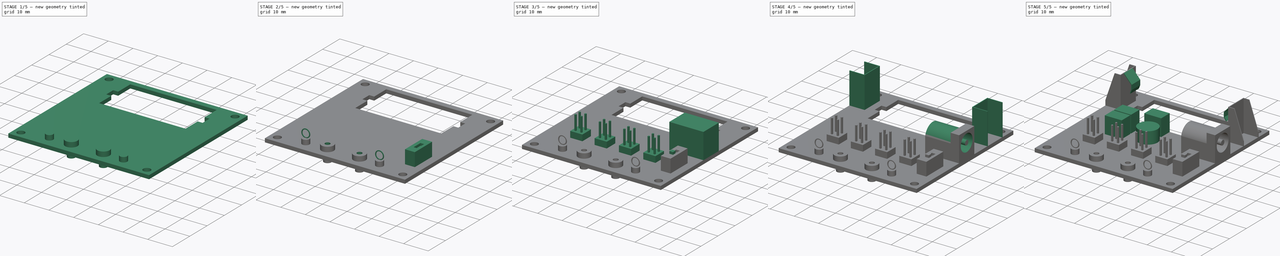
[diagram: build sequence overview — one tinted view per stage of 5, left to right]
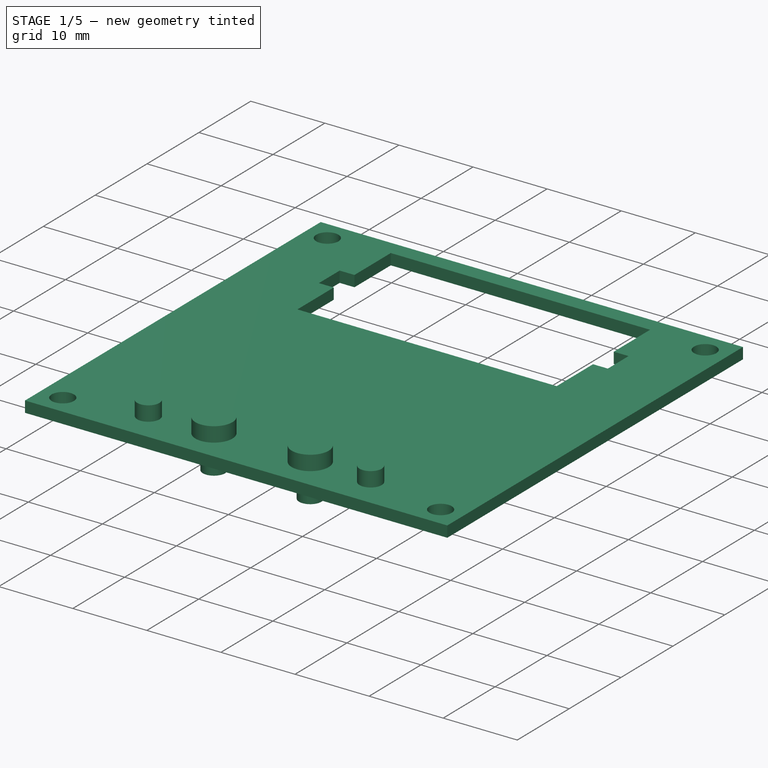
[diagram: stage 1 of 5 — iso view after this stage's code; geometry added in this stage tinted green]
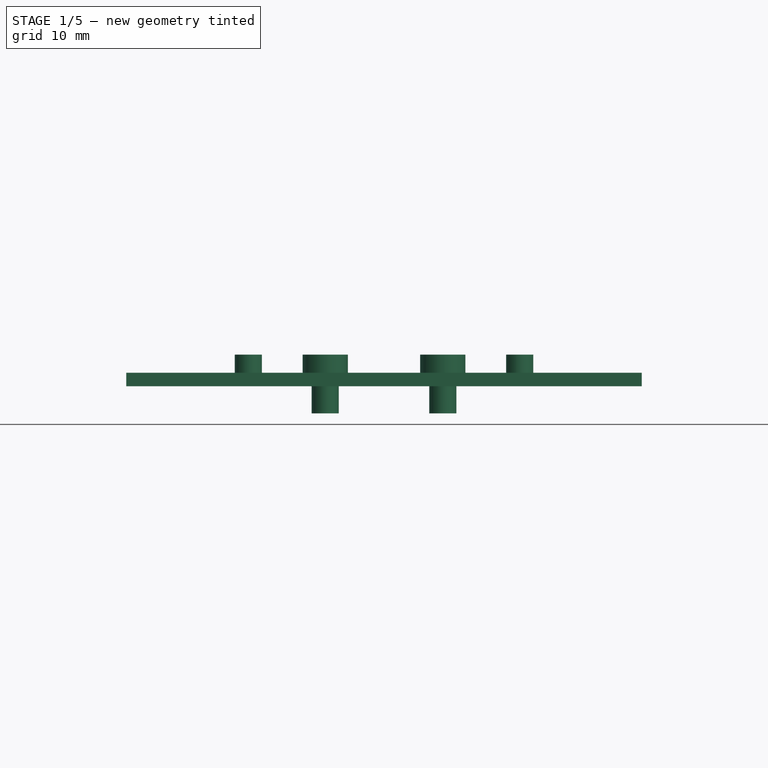
[diagram: stage 1 of 5 — front view after this stage's code; geometry added in this stage tinted green]
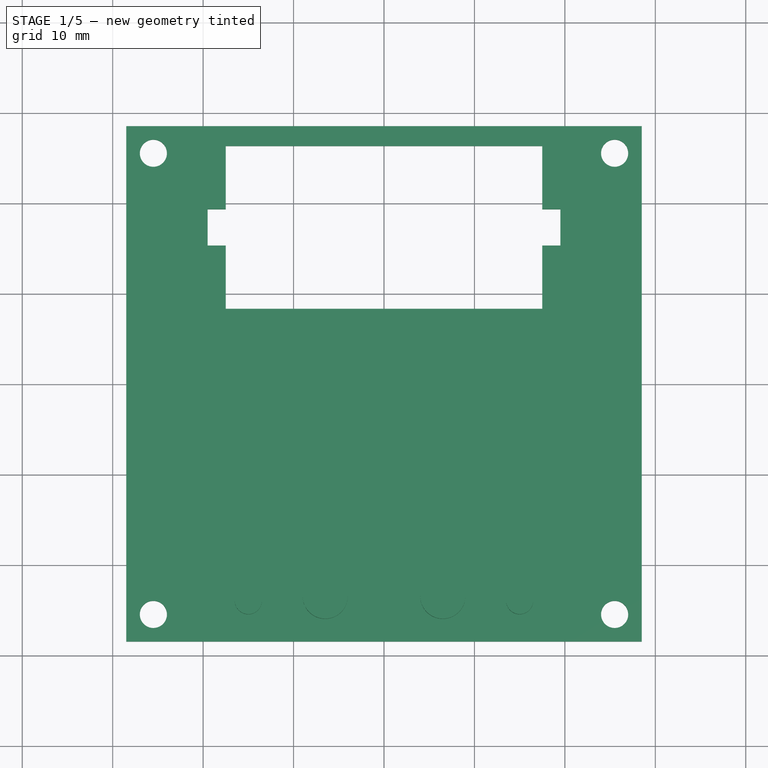
[diagram: stage 1 of 5 — top view after this stage's code; geometry added in this stage tinted green]
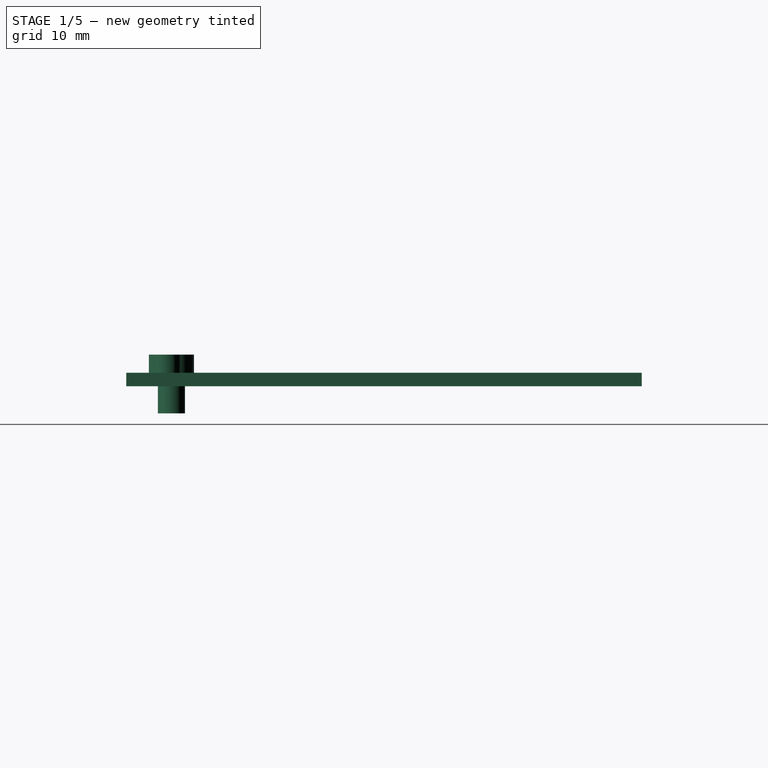
[diagram: stage 1 of 5 — right view after this stage's code; geometry added in this stage tinted green]
FCSTD DOCUMENT  (FreeCAD 0.20R29410 (Git))
Label: ref_pcb
License: All rights reserved
LicenseURL: http://en.wikipedia.org/wiki/All_rights_reserved
objects: Sketcher::SketchObject×20, PartDesign::Pad×14, PartDesign::Pocket×6, PartDesign::CoordinateSystem×3, PartDesign::Plane×2, PartDesign::Body×1
note: 66 computed .brp shape members not serialized (recipe doc carries the construction recipe); baked Part::Feature solids carry a one-line shape summary decoded from their .brp

FEATURE [Sketcher::SketchObject] Sketch
  FullyConstrained = true
  MapMode = 5
  Support = -> [XY_Plane]
  sketch-geometry (4):
    g0: LineSegment StartX=-28.5 StartY=28.5 StartZ=0 EndX=28.5 EndY=28.5 EndZ=0
    g1: LineSegment StartX=28.5 StartY=28.5 StartZ=0 EndX=28.5 EndY=-28.5 EndZ=0
    g2: LineSegment StartX=28.5 StartY=-28.5 StartZ=0 EndX=-28.5 EndY=-28.5 EndZ=0
    g3: LineSegment StartX=-28.5 StartY=-28.5 StartZ=0 EndX=-28.5 EndY=28.5 EndZ=0
  constraints (10):
    c: Coincident(g0,g1)
    c: Coincident(g1,g2)
    c: Coincident(g2,g3)
    c: Coincident(g3,g0)
    c: Horizontal(g0)
    c: Vertical(g3)
    c: Symmetric(g2,g1,g-2)
    c: Symmetric(g1,g0,g-1)
    c: DistanceX(g0,g0) = 57
    c: DistanceY(g1,g1) = 57
FEATURE [PartDesign::Pad] Pad
  Direction = (0,0,1)
  Length = 1.5
  Length2 = 10
  Profile = -> Sketch
  ReferenceAxis = -> Sketch [N_Axis]
  Type = 0
FEATURE [Sketcher::SketchObject] Sketch001
  ExternalGeometry = -> [Pad]
  FullyConstrained = true
  MapMode = 5
  Placement = pos=(0,0,1.5) rot=(0,0,1;0rad)
  Support = -> [Pad]
  sketch-geometry (16):
    g0: Circle CenterX=-25.5 CenterY=25.5 CenterZ=0 NormalX=0 NormalY=0 NormalZ=1 AngleXU=0 Radius=1.5
    g1: Circle CenterX=25.5 CenterY=25.5 CenterZ=0 NormalX=0 NormalY=0 NormalZ=1 AngleXU=0 Radius=1.5
    g2: Circle CenterX=25.5 CenterY=-25.5 CenterZ=0 NormalX=0 NormalY=0 NormalZ=1 AngleXU=0 Radius=1.5
    g3: Circle CenterX=-25.5 CenterY=-25.5 CenterZ=0 NormalX=0 NormalY=0 NormalZ=1 AngleXU=0 Radius=1.5
    g4: LineSegment StartX=-17.5 StartY=26.3 StartZ=0 EndX=17.5 EndY=26.3 EndZ=0
    g5: LineSegment StartX=17.5 StartY=26.3 StartZ=0 EndX=17.5 EndY=19.3 EndZ=0
    g6: LineSegment StartX=17.5 StartY=19.3 StartZ=0 EndX=19.5 EndY=19.3 EndZ=0
    g7: LineSegment StartX=19.5 StartY=19.3 StartZ=0 EndX=19.5 EndY=15.3 EndZ=0
    g8: LineSegment StartX=19.5 StartY=15.3 StartZ=0 EndX=17.5 EndY=15.3 EndZ=0
    g9: LineSegment StartX=17.5 StartY=15.3 StartZ=0 EndX=17.5 EndY=8.3 EndZ=0
    g10: LineSegment StartX=17.5 StartY=8.3 StartZ=0 EndX=-17.5 EndY=8.3 EndZ=0
    g11: LineSegment StartX=-17.5 StartY=8.3 StartZ=0 EndX=-17.5 EndY=15.3 EndZ=0
    g12: LineSegment StartX=-17.5 StartY=15.3 StartZ=0 EndX=-19.5 EndY=15.3 EndZ=0
    g13: LineSegment StartX=-19.5 StartY=15.3 StartZ=0 EndX=-19.5 EndY=19.3 EndZ=0
    g14: LineSegment StartX=-19.5 StartY=19.3 StartZ=0 EndX=-17.5 EndY=19.3 EndZ=0
    g15: LineSegment StartX=-17.5 StartY=19.3 StartZ=0 EndX=-17.5 EndY=26.3 EndZ=0
  constraints (45):
    c: Symmetric(g3,g0,g-1)
    c: Symmetric(g2,g1,g-1)
    c: Symmetric(g0,g1,g-2)
    c: DistanceX(g0,g1) = 51
    c: DistanceY(g2,g1) = 51
    c: Equal(g3,g2)
    c: Equal(g2,g1)
    c: Equal(g1,g0)
    c: Diameter(g1) = 3
    c: Horizontal(g4)
    c: Coincident(g4,g5)
    c: Vertical(g5)
    c: Coincident(g5,g6)
    c: Horizontal(g6)
    c: Coincident(g6,g7)
    c: Vertical(g7)
    c: Coincident(g7,g8)
    c: Horizontal(g8)
    c: Coincident(g8,g9)
    c: Vertical(g9)
    c: Coincident(g9,g10)
    c: Horizontal(g10)
    c: Coincident(g10,g11)
    c: Vertical(g11)
    c: Coincident(g11,g12)
    c: Horizontal(g12)
    c: Coincident(g12,g13)
    c: Vertical(g13)
    c: Coincident(g13,g14)
    c: Horizontal(g14)
    c: Coincident(g14,g15)
    c: Coincident(g15,g4)
    c: Vertical(g15)
    c: Equal(g10,g4)
    c: Equal(g5,g15)
    c: Equal(g15,g11)
    c: Equal(g11,g9)
    c: DistanceY(g15,g15) = 7
    c: DistanceX(g4,g4) = 35
    c: Equal(g12,g14)
    c: Equal(g14,g6)
    c: DistanceY(g7,g7) = 4
    c: DistanceY(g4,g-3) = 2.2
    c: DistanceX(g-3,g4) = 11
    c: DistanceX(g14,g14) = 2
FEATURE [PartDesign::Pocket] Pocket
  BaseFeature = -> Pad
  Direction = (0,0,-1)
  Length = 1.5
  Length2 = 5
  Profile = -> Sketch001
  ReferenceAxis = -> Sketch001 [N_Axis]
  Type = 0
FEATURE [Sketcher::SketchObject] Sketch002
  ExternalGeometry = -> [Pocket]
  FullyConstrained = true
  MapMode = 5
  Placement = pos=(0,0,0) rot=(1,0,0;3.14159rad)
  Support = -> [Pocket]
  sketch-geometry (2):
    g0: Circle CenterX=-6.5 CenterY=23.5 CenterZ=0 NormalX=0 NormalY=0 NormalZ=1 AngleXU=0 Radius=1.5
    g1: Circle CenterX=6.5 CenterY=23.5 CenterZ=0 NormalX=0 NormalY=0 NormalZ=1 AngleXU=0 Radius=1.5
  constraints (5):
    c: Equal(g1,g0)
    c: Diameter(g1) = 3
    c: Symmetric(g1,g0,g-2)
    c: DistanceX(g0,g1) = 13
    c: DistanceY(g1,g-3) = 5
FEATURE [PartDesign::Pad] Pad001
  BaseFeature = -> Pocket
  Direction = (0,0,-1)
  Length = 3
  Length2 = 10
  Profile = -> Sketch002
  ReferenceAxis = -> Sketch002 [N_Axis]
  Type = 0
FEATURE [Sketcher::SketchObject] Sketch003
  ExternalGeometry = -> [Pad001]
  FullyConstrained = true
  MapMode = 5
  Placement = pos=(0,0,1.5) rot=(0,0,1;0rad)
  Support = -> [Pad001]
  sketch-geometry (4):
    g0: Circle CenterX=-6.5 CenterY=-23.5 CenterZ=0 NormalX=0 NormalY=0 NormalZ=1 AngleXU=0 Radius=2.5
    g1: Circle CenterX=6.5 CenterY=-23.5 CenterZ=0 NormalX=0 NormalY=0 NormalZ=1 AngleXU=0 Radius=2.5
    g2: Circle CenterX=15 CenterY=-24 CenterZ=0 NormalX=0 NormalY=0 NormalZ=1 AngleXU=0 Radius=1.5
    g3: Circle CenterX=-15 CenterY=-24 CenterZ=0 NormalX=0 NormalY=0 NormalZ=1 AngleXU=0 Radius=1.5
  constraints (10):
    c: Equal(g1,g0)
    c: Symmetric(g1,g0,g-2)
    c: DistanceX(g0,g1) = 13
    c: DistanceY(g-3,g1) = 5
    c: Diameter(g1) = 5
    c: Equal(g3,g2)
    c: Diameter(g2) = 3
    c: Symmetric(g3,g2,g-2)
    c: DistanceX(g3,g2) = 30
    c: DistanceY(g-3,g2) = 4.5
FEATURE [PartDesign::Pad] Pad002
  BaseFeature = -> Pad001
  Direction = (0,0,1)
  Length = 2
  Length2 = 10
  Profile = -> Sketch003
  ReferenceAxis = -> Sketch003 [N_Axis]
  Type = 0
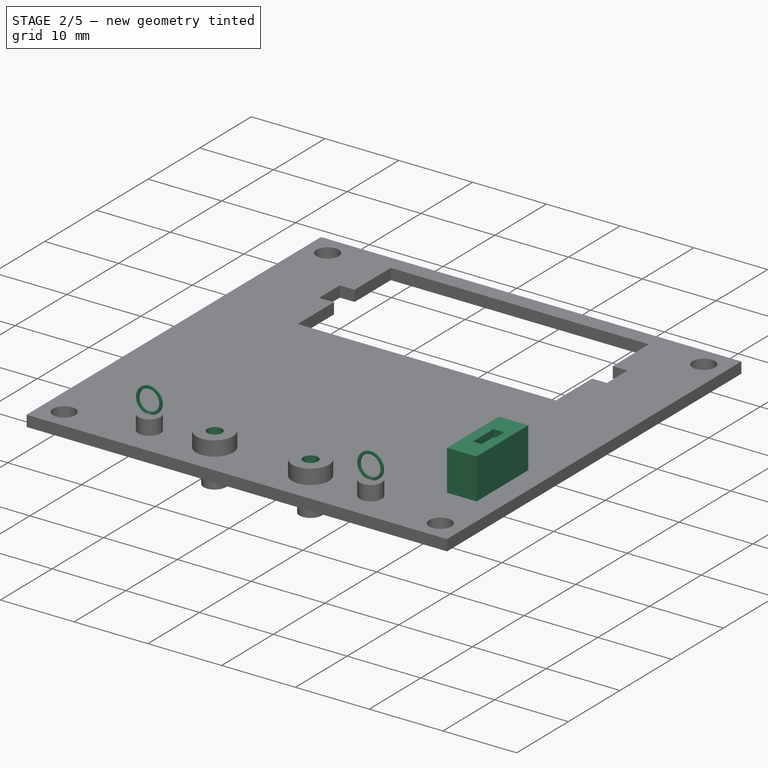
[diagram: stage 2 of 5 — iso view after this stage's code; geometry added in this stage tinted green]
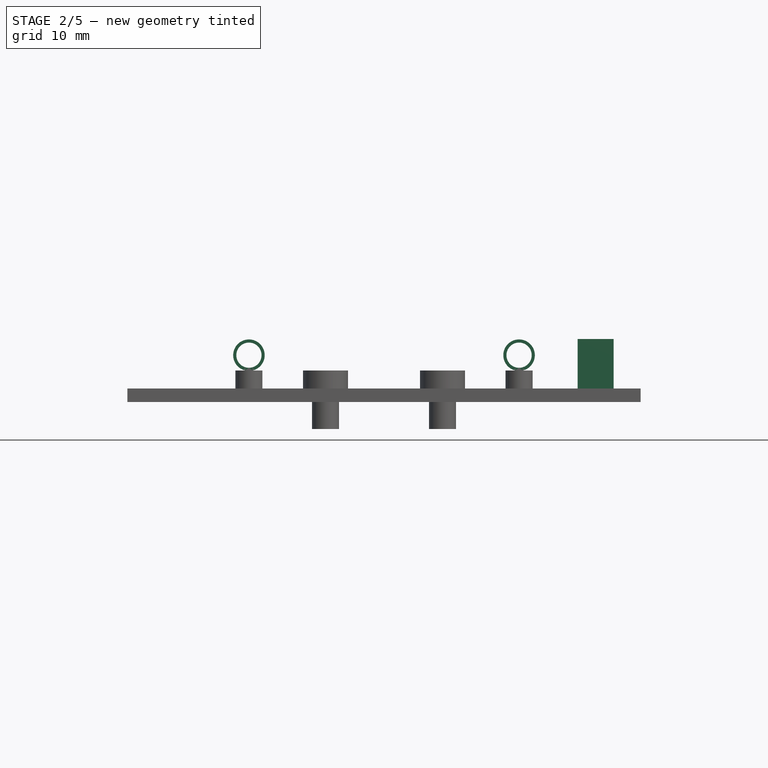
[diagram: stage 2 of 5 — front view after this stage's code; geometry added in this stage tinted green]
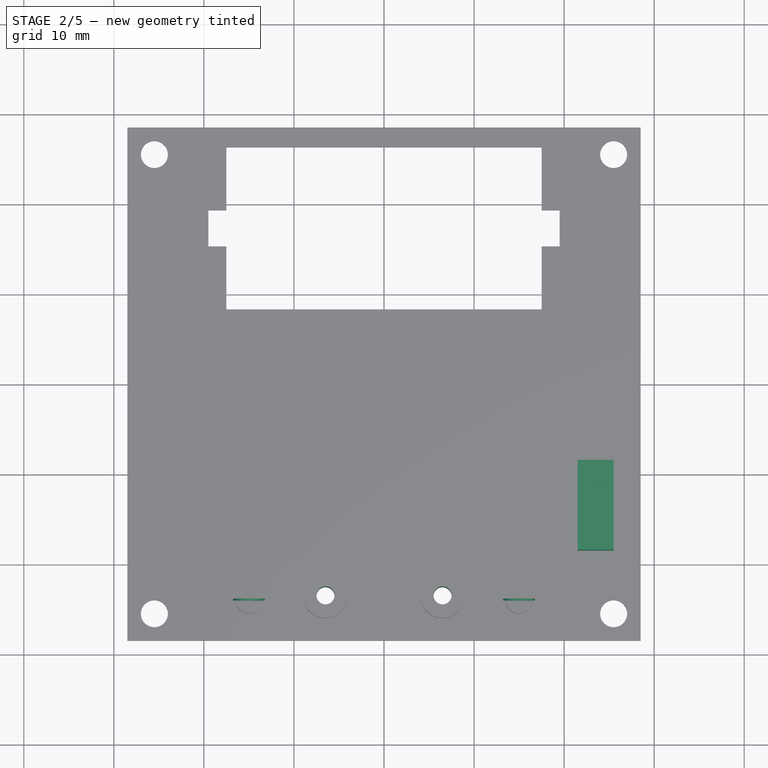
[diagram: stage 2 of 5 — top view after this stage's code; geometry added in this stage tinted green]
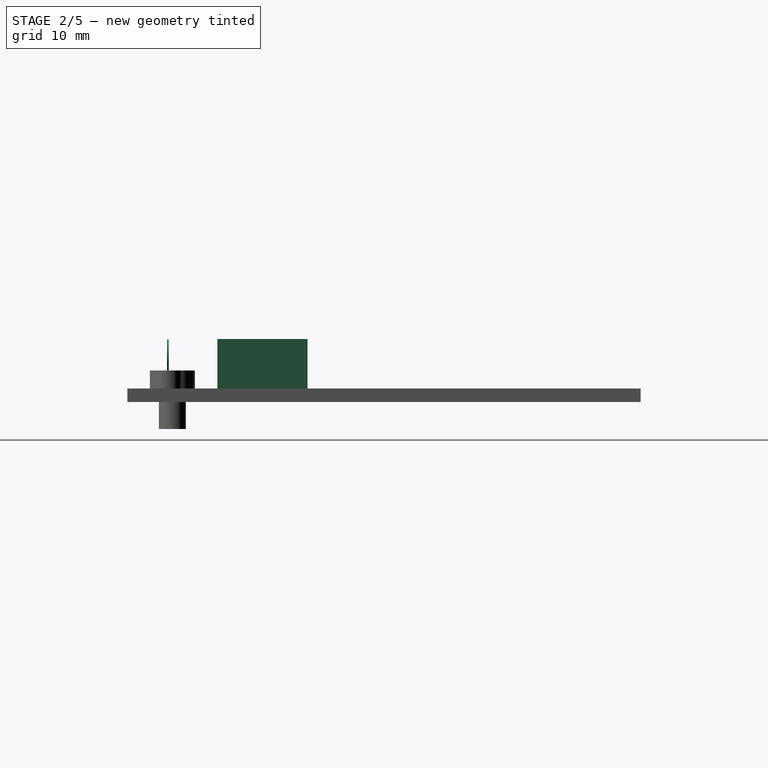
[diagram: stage 2 of 5 — right view after this stage's code; geometry added in this stage tinted green]
FEATURE [Sketcher::SketchObject] Sketch004
  ExternalGeometry = -> [Pad002]
  FullyConstrained = true
  MapMode = 5
  Placement = pos=(0,0,-3) rot=(1,0,0;3.14159rad)
  Support = -> [Pad002]
  sketch-geometry (2):
    g0: Circle CenterX=-6.5 CenterY=23.5 CenterZ=0 NormalX=0 NormalY=0 NormalZ=1 AngleXU=0 Radius=1
    g1: Circle CenterX=6.5 CenterY=23.5 CenterZ=0 NormalX=0 NormalY=0 NormalZ=1 AngleXU=0 Radius=1
  constraints (4):
    c: Diameter(g0) = 2
    c: Equal(g1,g0)
    c: Coincident(g0,g-4)
    c: Coincident(g1,g-3)
FEATURE [PartDesign::Pocket] Pocket001
  BaseFeature = -> Pad002
  Direction = (0,0,1)
  Length = 5
  Length2 = 5
  Profile = -> Sketch004
  ReferenceAxis = -> Sketch004 [N_Axis]
  Type = 1
FEATURE [PartDesign::CoordinateSystem] Local_CS
  AttacherType = Attacher::AttachEngine3D
  MapMode = 11
  Placement = pos=(-15,-24,3.5) rot=(0,0,1;1.5708rad)
  Support = -> [Pocket001]
FEATURE [PartDesign::Plane] DatumPlane
  AttachmentOffset = pos=(0,0,0) rot=(0,-1,0;1.5708rad)
  Length = 60.6771
  MapMode = 5
  Placement = pos=(-15,-24,3.5) rot=(0.57735,-0.57735,0.57735;2.0944rad)
  ResizeMode = 0
  Support = -> [Local_CS]
  Width = 67.6771
FEATURE [Sketcher::SketchObject] Sketch005
  ExternalGeometry = -> [Pocket001]
  FullyConstrained = true
  MapMode = 5
  Placement = pos=(-15,-24,3.5) rot=(0.57735,-0.57735,0.57735;2.0944rad)
  Support = -> [DatumPlane]
  sketch-geometry (4):
    g0: Circle CenterX=1.7 CenterY=0 CenterZ=0 NormalX=0 NormalY=0 NormalZ=1 AngleXU=0 Radius=1.75
    g1: Circle CenterX=1.7 CenterY=0 CenterZ=0 NormalX=0 NormalY=0 NormalZ=1 AngleXU=0 Radius=1.4
    g2: Circle CenterX=1.7 CenterY=-30 CenterZ=0 NormalX=0 NormalY=0 NormalZ=1 AngleXU=0 Radius=1.75
    g3: Circle CenterX=1.7 CenterY=-30 CenterZ=0 NormalX=0 NormalY=0 NormalZ=1 AngleXU=0 Radius=1.4
  constraints (10):
    c: Coincident(g1,g0)
    c: PointOnObject(g0,g-1)
    c: Diameter(g0) = 3.5
    c: Diameter(g1) = 2.8
    c: Coincident(g3,g2)
    c: DistanceX(g-1,g0) = 1.7
    c: DistanceX(g-1,g2) = 1.7
    c: Diameter(g3) = 2.8
    c: Diameter(g2) = 3.5
    c: DistanceY(g2,g0) = 30
FEATURE [PartDesign::Pad] Pad003
  BaseFeature = -> Pocket001
  Direction = (-2e-16,-1,2e-16)
  Length = 0.1
  Length2 = 0.1
  Profile = -> Sketch005
  ReferenceAxis = -> Sketch005 [N_Axis]
  Type = 4
FEATURE [Sketcher::SketchObject] Sketch006
  ExternalGeometry = -> [Pad003]
  FullyConstrained = true
  MapMode = 5
  Placement = pos=(0,0,1.5) rot=(0,0,1;0rad)
  Support = -> [Pad003]
  sketch-geometry (4):
    g0: LineSegment StartX=21.5 StartY=-8.5 StartZ=0 EndX=25.5 EndY=-8.5 EndZ=0
    g1: LineSegment StartX=25.5 StartY=-8.5 StartZ=0 EndX=25.5 EndY=-18.5 EndZ=0
    g2: LineSegment StartX=25.5 StartY=-18.5 StartZ=0 EndX=21.5 EndY=-18.5 EndZ=0
    g3: LineSegment StartX=21.5 StartY=-18.5 StartZ=0 EndX=21.5 EndY=-8.5 EndZ=0
  constraints (12):
    c: Coincident(g0,g1)
    c: Coincident(g1,g2)
    c: Coincident(g2,g3)
    c: Coincident(g3,g0)
    c: Horizontal(g0)
    c: Horizontal(g2)
    c: Vertical(g1)
    c: Vertical(g3)
    c: DistanceX(g0,g0) = 4
    c: DistanceY(g1,g1) = 10
    c: DistanceY(g-3,g1) = 10
    c: DistanceX(g1,g-3) = 3
FEATURE [PartDesign::Pad] Pad004
  BaseFeature = -> Pad003
  Direction = (0,0,1)
  Length = 5.5
  Length2 = 10
  Profile = -> Sketch006
  ReferenceAxis = -> Sketch006 [N_Axis]
  Type = 0
FEATURE [Sketcher::SketchObject] Sketch007
  ExternalGeometry = -> [Pad004]
  FullyConstrained = true
  MapMode = 5
  Placement = pos=(0,0,7) rot=(0,0,1;0rad)
  Support = -> [Pad004]
  sketch-geometry (4):
    g0: LineSegment StartX=22.9 StartY=-11.5 StartZ=0 EndX=24.4 EndY=-11.5 EndZ=0
    g1: LineSegment StartX=24.4 StartY=-11.5 StartZ=0 EndX=24.4 EndY=-15.5 EndZ=0
    g2: LineSegment StartX=24.4 StartY=-15.5 StartZ=0 EndX=22.9 EndY=-15.5 EndZ=0
    g3: LineSegment StartX=22.9 StartY=-15.5 StartZ=0 EndX=22.9 EndY=-11.5 EndZ=0
  constraints (12):
    c: Coincident(g0,g1)
    c: Coincident(g1,g2)
    c: Coincident(g2,g3)
    c: Coincident(g3,g0)
    c: Horizontal(g0)
    c: Horizontal(g2)
    c: Vertical(g1)
    c: Vertical(g3)
    c: DistanceX(g0,g0) = 1.5
    c: DistanceY(g1,g1) = 4
    c: DistanceX(g1,g-3) = 1.1
    c: DistanceY(g-3,g1) = 3
FEATURE [PartDesign::Pocket] Pocket002
  BaseFeature = -> Pad004
  Direction = (0,0,-1)
  Length = 1
  Length2 = 5
  Profile = -> Sketch007
  ReferenceAxis = -> Sketch007 [N_Axis]
  Type = 0
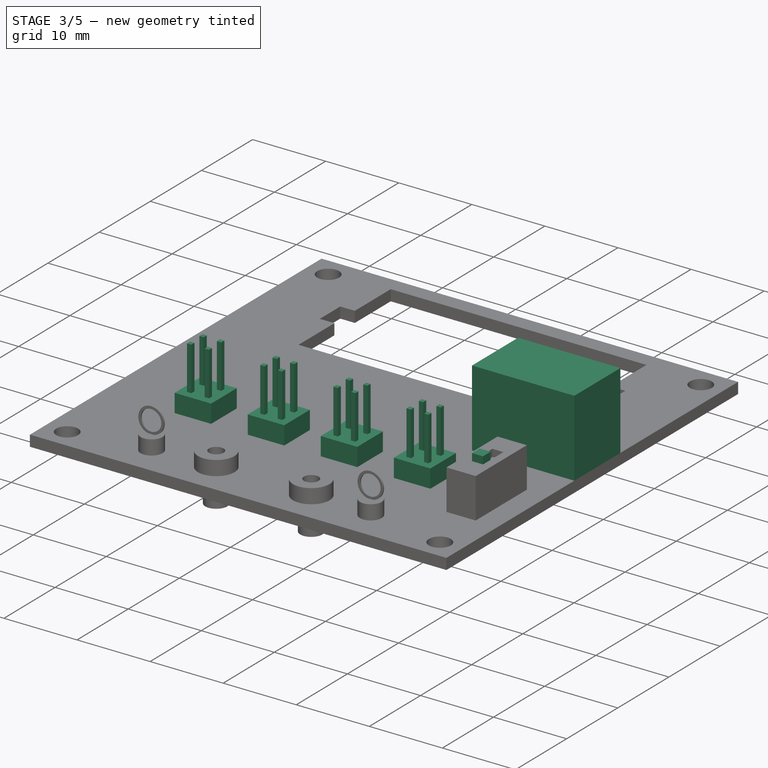
[diagram: stage 3 of 5 — iso view after this stage's code; geometry added in this stage tinted green]
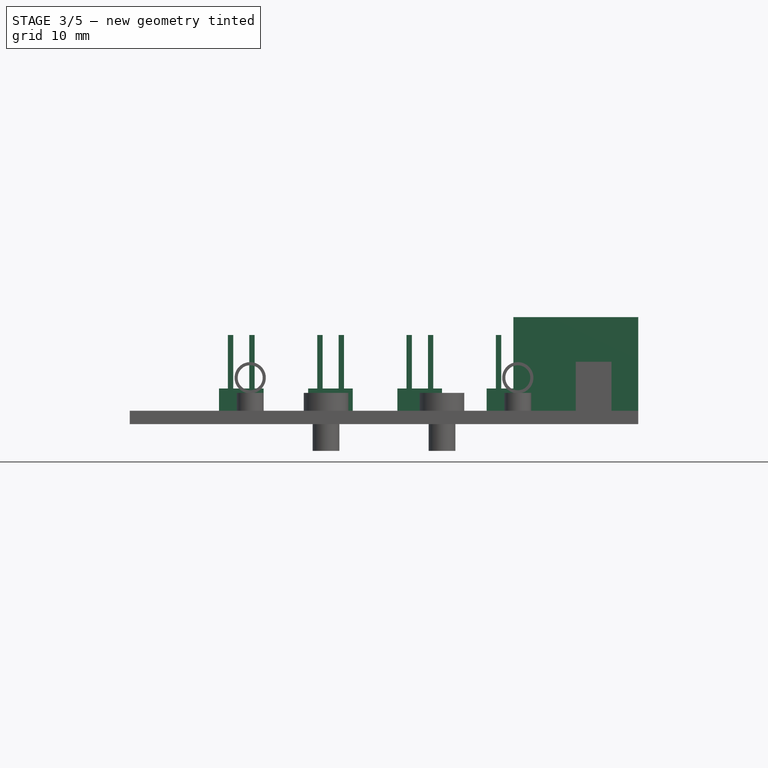
[diagram: stage 3 of 5 — front view after this stage's code; geometry added in this stage tinted green]
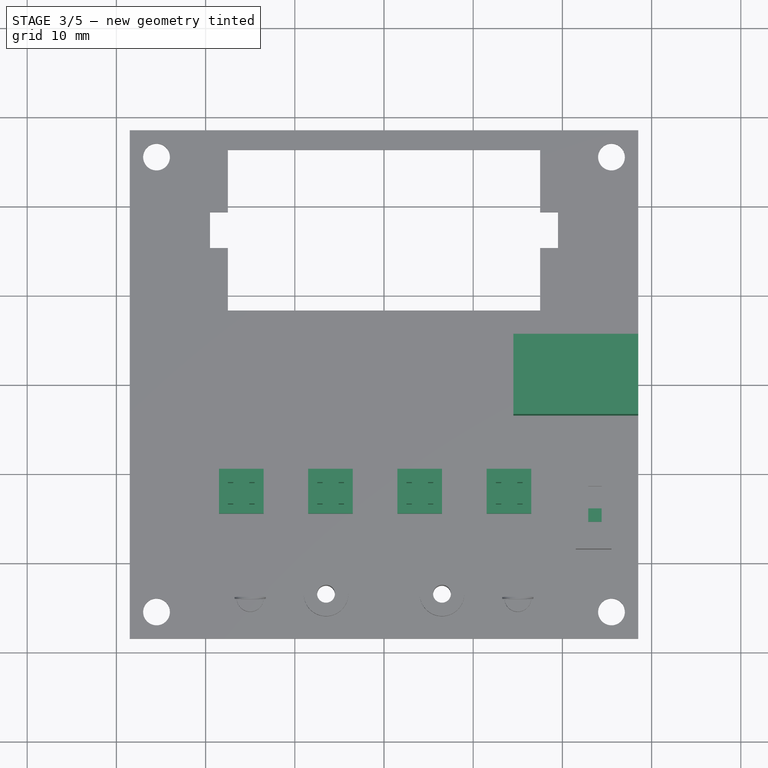
[diagram: stage 3 of 5 — top view after this stage's code; geometry added in this stage tinted green]
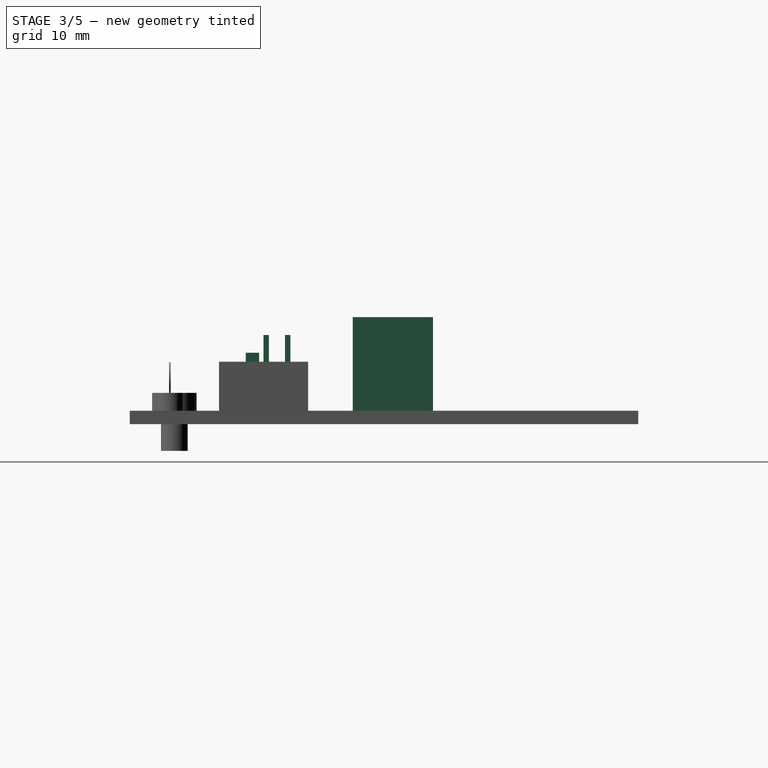
[diagram: stage 3 of 5 — right view after this stage's code; geometry added in this stage tinted green]
FEATURE [Sketcher::SketchObject] Sketch008
  ExternalGeometry = -> [Pocket002]
  FullyConstrained = true
  MapMode = 5
  Placement = pos=(0,0,6) rot=(0,0,1;0rad)
  Support = -> [Pocket002]
  sketch-geometry (4):
    g0: LineSegment StartX=22.9 StartY=-15.5 StartZ=0 EndX=24.4 EndY=-15.5 EndZ=0
    g1: LineSegment StartX=24.4 StartY=-15.5 StartZ=0 EndX=24.4 EndY=-14 EndZ=0
    g2: LineSegment StartX=24.4 StartY=-14 StartZ=0 EndX=22.9 EndY=-14 EndZ=0
    g3: LineSegment StartX=22.9 StartY=-14 StartZ=0 EndX=22.9 EndY=-15.5 EndZ=0
  constraints (10):
    c: Coincident(g0,g1)
    c: Coincident(g1,g2)
    c: Coincident(g2,g3)
    c: Coincident(g3,g0)
    c: Horizontal(g2)
    c: Vertical(g1)
    c: Vertical(g3)
    c: Coincident(g0,g-3)
    c: Coincident(g0,g-3)
    c: DistanceY(g3,g3) = 1.5
FEATURE [PartDesign::Pad] Pad005
  BaseFeature = -> Pocket002
  Direction = (0,0,1)
  Length = 2
  Length2 = 10
  Profile = -> Sketch008
  ReferenceAxis = -> Sketch008 [N_Axis]
  Type = 0
FEATURE [Sketcher::SketchObject] Sketch009
  ExternalGeometry = -> [Pad005]
  FullyConstrained = true
  MapMode = 5
  Placement = pos=(0,0,1.5) rot=(0,0,1;0rad)
  Support = -> [Pad005]
  sketch-geometry (16):
    g0: LineSegment StartX=-18.5 StartY=-9.5 StartZ=0 EndX=-13.5 EndY=-9.5 EndZ=0
    g1: LineSegment StartX=-13.5 StartY=-9.5 StartZ=0 EndX=-13.5 EndY=-14.5 EndZ=0
    g2: LineSegment StartX=-13.5 StartY=-14.5 StartZ=0 EndX=-18.5 EndY=-14.5 EndZ=0
    g3: LineSegment StartX=-18.5 StartY=-14.5 StartZ=0 EndX=-18.5 EndY=-9.5 EndZ=0
    g4: LineSegment StartX=-8.5 StartY=-9.5 StartZ=0 EndX=-3.5 EndY=-9.5 EndZ=0
    g5: LineSegment StartX=-3.5 StartY=-9.5 StartZ=0 EndX=-3.5 EndY=-14.5 EndZ=0
    g6: LineSegment StartX=-3.5 StartY=-14.5 StartZ=0 EndX=-8.5 EndY=-14.5 EndZ=0
    g7: LineSegment StartX=-8.5 StartY=-14.5 StartZ=0 EndX=-8.5 EndY=-9.5 EndZ=0
    g8: LineSegment StartX=1.5 StartY=-9.5 StartZ=0 EndX=6.5 EndY=-9.5 EndZ=0
    g9: LineSegment StartX=6.5 StartY=-9.5 StartZ=0 EndX=6.5 EndY=-14.5 EndZ=0
    g10: LineSegment StartX=6.5 StartY=-14.5 StartZ=0 EndX=1.5 EndY=-14.5 EndZ=0
    g11: LineSegment StartX=1.5 StartY=-14.5 StartZ=0 EndX=1.5 EndY=-9.5 EndZ=0
    g12: LineSegment StartX=16.5 StartY=-9.5 StartZ=0 EndX=11.5 EndY=-9.5 EndZ=0
    g13: LineSegment StartX=11.5 StartY=-9.5 StartZ=0 EndX=11.5 EndY=-14.5 EndZ=0
    g14: LineSegment StartX=11.5 StartY=-14.5 StartZ=0 EndX=16.5 EndY=-14.5 EndZ=0
    g15: LineSegment StartX=16.5 StartY=-14.5 StartZ=0 EndX=16.5 EndY=-9.5 EndZ=0
  constraints (48):
    c: Coincident(g0,g1)
    c: Coincident(g1,g2)
    c: Coincident(g2,g3)
    c: Coincident(g3,g0)
    c: Horizontal(g0)
    c: Horizontal(g2)
    c: Vertical(g1)
    c: Vertical(g3)
    c: Coincident(g4,g5)
    c: Coincident(g5,g6)
    c: Coincident(g6,g7)
    c: Coincident(g7,g4)
    c: Horizontal(g4)
    c: Horizontal(g6)
    c: Vertical(g5)
    c: Vertical(g7)
    c: Coincident(g8,g9)
    c: Coincident(g9,g10)
    c: Coincident(g10,g11)
    c: Coincident(g11,g8)
    c: Horizontal(g8)
    c: Horizontal(g10)
    c: Vertical(g9)
    c: Vertical(g11)
    c: Coincident(g12,g13)
    c: Coincident(g13,g14)
    c: Coincident(g14,g15)
    c: Coincident(g15,g12)
    c: Horizontal(g12)
    c: Horizontal(g14)
    c: Vertical(g13)
    c: Vertical(g15)
    c: Equal(g3,g7)
    c: Equal(g7,g11)
    c: Equal(g11,g15)
    c: Equal(g0,g4)
    c: Equal(g4,g8)
    c: Equal(g8,g12)
    c: DistanceX(g0,g0) = 5
    c: DistanceY(g3,g3) = 5
    c: DistanceX(g-3,g2) = 10
    c: DistanceY(g-3,g2) = 14
    c: DistanceY(g-3,g6) = 14
    c: DistanceY(g-3,g10) = 14
    c: DistanceY(g-3,g14) = 14
    c: DistanceX(g-3,g6) = 20
    c: DistanceX(g-3,g10) = 30
    c: DistanceX(g-3,g13) = 40
FEATURE [PartDesign::Pad] Pad006
  BaseFeature = -> Pad005
  Direction = (0,0,1)
  Length = 2.5
  Length2 = 10
  Profile = -> Sketch009
  ReferenceAxis = -> Sketch009 [N_Axis]
  Type = 0
FEATURE [Sketcher::SketchObject] Sketch010
  ExternalGeometry = -> [Pad006]
  FullyConstrained = true
  MapMode = 5
  Placement = pos=(0,0,4) rot=(0,0,1;0rad)
  Support = -> [Pad006]
  sketch-geometry (67):
    g0: LineSegment StartX=-17.5 StartY=-10.5 StartZ=0 EndX=-16.9 EndY=-10.5 EndZ=0
    g1: LineSegment StartX=-16.9 StartY=-10.5 StartZ=0 EndX=-16.9 EndY=-11.1 EndZ=0
    g2: LineSegment StartX=-16.9 StartY=-11.1 StartZ=0 EndX=-17.5 EndY=-11.1 EndZ=0
    g3: LineSegment StartX=-17.5 StartY=-11.1 StartZ=0 EndX=-17.5 EndY=-10.5 EndZ=0
    g4: LineSegment StartX=-15.1 StartY=-10.5 StartZ=0 EndX=-14.5 EndY=-10.5 EndZ=0
    g5: LineSegment StartX=-14.5 StartY=-10.5 StartZ=0 EndX=-14.5 EndY=-11.1 EndZ=0
    g6: LineSegment StartX=-14.5 StartY=-11.1 StartZ=0 EndX=-15.1 EndY=-11.1 EndZ=0
    g7: LineSegment StartX=-15.1 StartY=-11.1 StartZ=0 EndX=-15.1 EndY=-10.5 EndZ=0
    g8: LineSegment StartX=-17.5 StartY=-12.9 StartZ=0 EndX=-16.9 EndY=-12.9 EndZ=0
    g9: LineSegment StartX=-16.9 StartY=-12.9 StartZ=0 EndX=-16.9 EndY=-13.5 EndZ=0
    g10: LineSegment StartX=-16.9 StartY=-13.5 StartZ=0 EndX=-17.5 EndY=-13.5 EndZ=0
    g11: LineSegment StartX=-17.5 StartY=-13.5 StartZ=0 EndX=-17.5 EndY=-12.9 EndZ=0
    g12: LineSegment StartX=-15.1 StartY=-12.9 StartZ=0 EndX=-14.5 EndY=-12.9 EndZ=0
    g13: LineSegment StartX=-14.5 StartY=-12.9 StartZ=0 EndX=-14.5 EndY=-13.5 EndZ=0
    g14: LineSegment StartX=-14.5 StartY=-13.5 StartZ=0 EndX=-15.1 EndY=-13.5 EndZ=0
    g15: LineSegment StartX=-15.1 StartY=-13.5 StartZ=0 EndX=-15.1 EndY=-12.9 EndZ=0
    g16: LineSegment StartX=-7.48673 StartY=-10.5006 StartZ=0 EndX=-6.88673 EndY=-10.5006 EndZ=0
    g17: LineSegment StartX=-6.88673 StartY=-10.5006 StartZ=0 EndX=-6.88673 EndY=-11.1006 EndZ=0
    g18: LineSegment StartX=-6.88673 StartY=-11.1006 StartZ=0 EndX=-7.48673 EndY=-11.1006 EndZ=0
    g19: LineSegment StartX=-7.48673 StartY=-11.1006 StartZ=0 EndX=-7.48673 EndY=-10.5006 EndZ=0
    g20: LineSegment StartX=-5.08673 StartY=-10.5006 StartZ=0 EndX=-4.48673 EndY=-10.5006 EndZ=0
    g21: LineSegment StartX=-4.48673 StartY=-10.5006 StartZ=0 EndX=-4.48673 EndY=-11.1006 EndZ=0
    g22: LineSegment StartX=-4.48673 StartY=-11.1006 StartZ=0 EndX=-5.08673 EndY=-11.1006 EndZ=0
    g23: LineSegment StartX=-5.08673 StartY=-11.1006 StartZ=0 EndX=-5.08673 EndY=-10.5006 EndZ=0
    g24: LineSegment StartX=-7.48673 StartY=-12.9006 StartZ=0 EndX=-6.88673 EndY=-12.9006 EndZ=0
    g25: LineSegment StartX=-6.88673 StartY=-12.9006 StartZ=0 EndX=-6.88673 EndY=-13.5006 EndZ=0
    g26: LineSegment StartX=-6.88673 StartY=-13.5006 StartZ=0 EndX=-7.48673 EndY=-13.5006 EndZ=0
    g27: LineSegment StartX=-7.48673 StartY=-13.5006 StartZ=0 EndX=-7.48673 EndY=-12.9006 EndZ=0
    g28: LineSegment StartX=-5.08673 StartY=-12.9006 StartZ=0 EndX=-4.48673 EndY=-12.9006 EndZ=0
    g29: LineSegment StartX=-4.48673 StartY=-12.9006 StartZ=0 EndX=-4.48673 EndY=-13.5006 EndZ=0
    g30: LineSegment StartX=-4.48673 StartY=-13.5006 StartZ=0 EndX=-5.08673 EndY=-13.5006 EndZ=0
    g31: LineSegment StartX=-5.08673 StartY=-13.5006 StartZ=0 EndX=-5.08673 EndY=-12.9006 EndZ=0
    g32: LineSegment StartX=-17.5 StartY=-10.5 StartZ=0 EndX=-7.48673 EndY=-10.5006 EndZ=0
    g33: LineSegment StartX=2.52654 StartY=-10.5012 StartZ=0 EndX=3.12654 EndY=-10.5012 EndZ=0
    g34: LineSegment StartX=3.12654 StartY=-10.5012 StartZ=0 EndX=3.12654 EndY=-11.1012 EndZ=0
    g35: LineSegment StartX=3.12654 StartY=-11.1012 StartZ=0 EndX=2.52654 EndY=-11.1012 EndZ=0
    g36: LineSegment StartX=2.52654 StartY=-11.1012 StartZ=0 EndX=2.52654 EndY=-10.5012 EndZ=0
    g37: LineSegment StartX=4.92654 StartY=-10.5012 StartZ=0 EndX=5.52654 EndY=-10.5012 EndZ=0
    g38: LineSegment StartX=5.52654 StartY=-10.5012 StartZ=0 EndX=5.52654 EndY=-11.1012 EndZ=0
    g39: LineSegment StartX=5.52654 StartY=-11.1012 StartZ=0 EndX=4.92654 EndY=-11.1012 EndZ=0
    g40: LineSegment StartX=4.92654 StartY=-11.1012 StartZ=0 EndX=4.92654 EndY=-10.5012 EndZ=0
    g41: LineSegment StartX=2.52654 StartY=-12.9012 StartZ=0 EndX=3.12654 EndY=-12.9012 EndZ=0
    g42: LineSegment StartX=3.12654 StartY=-12.9012 StartZ=0 EndX=3.12654 EndY=-13.5012 EndZ=0
    g43: LineSegment StartX=3.12654 StartY=-13.5012 StartZ=0 EndX=2.52654 EndY=-13.5012 EndZ=0
    g44: LineSegment StartX=2.52654 StartY=-13.5012 StartZ=0 EndX=2.52654 EndY=-12.9012 EndZ=0
    g45: LineSegment StartX=4.92654 StartY=-12.9012 StartZ=0 EndX=5.52654 EndY=-12.9012 EndZ=0
    g46: LineSegment StartX=5.52654 StartY=-12.9012 StartZ=0 EndX=5.52654 EndY=-13.5012 EndZ=0
    g47: LineSegment StartX=5.52654 StartY=-13.5012 StartZ=0 EndX=4.92654 EndY=-13.5012 EndZ=0
    g48: LineSegment StartX=4.92654 StartY=-13.5012 StartZ=0 EndX=4.92654 EndY=-12.9012 EndZ=0
    g49: LineSegment StartX=-7.48673 StartY=-10.5006 StartZ=0 EndX=2.52654 EndY=-10.5012 EndZ=0
    g50: LineSegment StartX=12.5398 StartY=-10.5017 StartZ=0 EndX=13.1398 EndY=-10.5017 EndZ=0
    g51: LineSegment StartX=13.1398 StartY=-10.5017 StartZ=0 EndX=13.1398 EndY=-11.1017 EndZ=0
    g52: LineSegment StartX=13.1398 StartY=-11.1017 StartZ=0 EndX=12.5398 EndY=-11.1017 EndZ=0
    g53: LineSegment StartX=12.5398 StartY=-11.1017 StartZ=0 EndX=12.5398 EndY=-10.5017 EndZ=0
    g54: LineSegment StartX=14.9398 StartY=-10.5017 StartZ=0 EndX=15.5398 EndY=-10.5017 EndZ=0
    g55: LineSegment StartX=15.5398 StartY=-10.5017 StartZ=0 EndX=15.5398 EndY=-11.1017 EndZ=0
    g56: LineSegment StartX=15.5398 StartY=-11.1017 StartZ=0 EndX=14.9398 EndY=-11.1017 EndZ=0
    g57: LineSegment StartX=14.9398 StartY=-11.1017 StartZ=0 EndX=14.9398 EndY=-10.5017 EndZ=0
    g58: LineSegment StartX=12.5398 StartY=-12.9017 StartZ=0 EndX=13.1398 EndY=-12.9017 EndZ=0
    g59: LineSegment StartX=13.1398 StartY=-12.9017 StartZ=0 EndX=13.1398 EndY=-13.5017 EndZ=0
    g60: LineSegment StartX=13.1398 StartY=-13.5017 StartZ=0 EndX=12.5398 EndY=-13.5017 EndZ=0
    g61: LineSegment StartX=12.5398 StartY=-13.5017 StartZ=0 EndX=12.5398 EndY=-12.9017 EndZ=0
    g62: LineSegment StartX=14.9398 StartY=-12.9017 StartZ=0 EndX=15.5398 EndY=-12.9017 EndZ=0
    g63: LineSegment StartX=15.5398 StartY=-12.9017 StartZ=0 EndX=15.5398 EndY=-13.5017 EndZ=0
    g64: LineSegment StartX=15.5398 StartY=-13.5017 StartZ=0 EndX=14.9398 EndY=-13.5017 EndZ=0
    g65: LineSegment StartX=14.9398 StartY=-13.5017 StartZ=0 EndX=14.9398 EndY=-12.9017 EndZ=0
    g66: LineSegment StartX=2.52654 StartY=-10.5012 StartZ=0 EndX=12.5398 EndY=-10.5017 EndZ=0
  constraints (198):
    c: Coincident(g0,g1)
    c: Coincident(g1,g2)
    c: Coincident(g2,g3)
    c: Coincident(g3,g0)
    c: Horizontal(g0)
    c: Horizontal(g2)
    c: Vertical(g1)
    c: Vertical(g3)
    c: Coincident(g4,g5)
    c: Coincident(g5,g6)
    c: Coincident(g6,g7)
    c: Coincident(g7,g4)
    c: Horizontal(g4)
    c: Horizontal(g6)
    c: Vertical(g5)
    c: Vertical(g7)
    c: Coincident(g8,g9)
    c: Coincident(g9,g10)
    c: Coincident(g10,g11)
    c: Coincident(g11,g8)
    c: Horizontal(g8)
    c: Horizontal(g10)
    c: Vertical(g9)
    c: Vertical(g11)
    c: Coincident(g12,g13)
    c: Coincident(g13,g14)
    c: Coincident(g14,g15)
    c: Coincident(g15,g12)
    c: Horizontal(g12)
    c: Horizontal(g14)
    c: Vertical(g13)
    c: Vertical(g15)
    c: Equal(g1,g5)
    c: Equal(g5,g13)
    c: Equal(g13,g9)
    c: Equal(g2,g6)
    c: Equal(g6,g14)
    c: Equal(g14,g10)
    c: DistanceY(g13,g13) = 0.6
    c: DistanceX(g14,g14) = 0.6
    c: DistanceY(g10,g0) = 3
    c: DistanceX(g0,g4) = 3
    c: DistanceX(g10,g13) = 3
    c: DistanceY(g13,g4) = 3
    c: DistanceY(g-3,g10) = 1
    c: DistanceX(g-3,g10) = 1
    c: DistanceY(g-3,g13) = 1
    c: DistanceX(g4,g-4) = 1
    c: Coincident(g16,g17)
    c: Coincident(g17,g18)
    c: Coincident(g18,g19)
    c: Coincident(g19,g16)
    c: Horizontal(g16)
    c: Horizontal(g18)
    c: Vertical(g17)
    c: Vertical(g19)
    c: Coincident(g20,g21)
    c: Coincident(g21,g22)
    c: Coincident(g22,g23)
    c: Coincident(g23,g20)
    c: Horizontal(g20)
    c: Horizontal(g22)
    c: Vertical(g21)
    c: Vertical(g23)
    c: Coincident(g24,g25)
    c: Coincident(g25,g26)
    c: Coincident(g26,g27)
    c: Coincident(g27,g24)
    c: Horizontal(g24)
    c: Horizontal(g26)
    c: Vertical(g25)
    c: Vertical(g27)
    c: Coincident(g28,g29)
    c: Coincident(g29,g30)
    c: Coincident(g30,g31)
    c: Coincident(g31,g28)
    c: Horizontal(g28)
    c: Horizontal(g30)
    c: Vertical(g29)
    c: Vertical(g31)
    c: Equal(g17,g21)
    c: Equal(g21,g29)
    c: Equal(g29,g25)
    c: Equal(g18,g22)
    c: Equal(g22,g30)
    c: Equal(g30,g26)
    c: DistanceY(g29,g29) = 0.6
    c: DistanceX(g30,g30) = 0.6
    c: DistanceY(g26,g16) = 3
    c: DistanceX(g16,g20) = 3
    c: DistanceX(g26,g29) = 3
    c: DistanceY(g29,g20) = 3
    c: Coincident(g0,g32)
    c: Coincident(g16,g32)
    c: Distance(g32) = 10.0133
    c: Angle(g32) = -5.82227e-05
    c: Coincident(g33,g34)
    c: Coincident(g34,g35)
    c: Coincident(g35,g36)
    c: Coincident(g36,g33)
    c: Horizontal(g33)
    c: Horizontal(g35)
    c: Vertical(g34)
    c: Vertical(g36)
    c: Coincident(g37,g38)
    c: Coincident(g38,g39)
    c: Coincident(g39,g40)
    c: Coincident(g40,g37)
    c: Horizontal(g37)
    c: Horizontal(g39)
    c: Vertical(g38)
    c: Vertical(g40)
    c: Coincident(g41,g42)
    c: Coincident(g42,g43)
    c: Coincident(g43,g44)
    c: Coincident(g44,g41)
    c: Horizontal(g41)
    c: Horizontal(g43)
    c: Vertical(g42)
    c: Vertical(g44)
    c: Coincident(g45,g46)
    c: Coincident(g46,g47)
    c: Coincident(g47,g48)
    c: Coincident(g48,g45)
    c: Horizontal(g45)
    c: Horizontal(g47)
    c: Vertical(g46)
    c: Vertical(g48)
    c: Equal(g34,g38)
    c: Equal(g38,g46)
    c: Equal(g46,g42)
    c: Equal(g35,g39)
    c: Equal(g39,g47)
    c: Equal(g47,g43)
    c: DistanceY(g46,g46) = 0.6
    c: DistanceX(g47,g47) = 0.6
    c: DistanceY(g43,g33) = 3
    c: DistanceX(g33,g37) = 3
    c: DistanceX(g43,g46) = 3
    c: DistanceY(g46,g37) = 3
    c: Coincident(g16,g49)
    c: Coincident(g33,g49)
    c: Equal(g32,g49)
    c: Parallel(g49,g32)
    c: Coincident(g50,g51)
    c: Coincident(g51,g52)
    c: Coincident(g52,g53)
    c: Coincident(g53,g50)
    c: Horizontal(g50)
    c: Horizontal(g52)
    c: Vertical(g51)
    c: Vertical(g53)
    c: Coincident(g54,g55)
    c: Coincident(g55,g56)
    c: Coincident(g56,g57)
    c: Coincident(g57,g54)
    c: Horizontal(g54)
    c: Horizontal(g56)
    c: Vertical(g55)
    c: Vertical(g57)
    c: Coincident(g58,g59)
    c: Coincident(g59,g60)
    c: Coincident(g60,g61)
    c: Coincident(g61,g58)
    c: Horizontal(g58)
    c: Horizontal(g60)
    c: Vertical(g59)
    c: Vertical(g61)
    c: Coincident(g62,g63)
    c: Coincident(g63,g64)
    c: Coincident(g64,g65)
    c: Coincident(g65,g62)
    c: Horizontal(g62)
    c: Horizontal(g64)
    c: Vertical(g63)
    c: Vertical(g65)
    c: Equal(g51,g55)
    c: Equal(g55,g63)
    c: Equal(g63,g59)
    c: Equal(g52,g56)
    c: Equal(g56,g64)
    c: Equal(g64,g60)
    c: DistanceY(g63,g63) = 0.6
    c: DistanceX(g64,g64) = 0.6
    c: DistanceY(g60,g50) = 3
    c: DistanceX(g50,g54) = 3
    c: DistanceX(g60,g63) = 3
    c: DistanceY(g63,g54) = 3
    c: Coincident(g33,g66)
    c: Coincident(g50,g66)
    c: Equal(g32,g66)
    c: Parallel(g66,g32)
    c: DistanceY(g16,g20) = 0
    c: DistanceY(g33,g37) = 0
    c: DistanceY(g50,g54) = 0
    c: DistanceX(g62,g55) = 0
    c: DistanceX(g45,g38) = 0
    c: DistanceX(g28,g21) = 0
FEATURE [PartDesign::Pad] Pad007
  BaseFeature = -> Pad006
  Direction = (0,0,1)
  Length = 6
  Length2 = 10
  Profile = -> Sketch010
  ReferenceAxis = -> Sketch010 [N_Axis]
  Type = 0
FEATURE [Sketcher::SketchObject] Sketch011
  ExternalGeometry = -> [Pad007]
  FullyConstrained = true
  MapMode = 5
  Placement = pos=(0,0,1.5) rot=(0,0,1;0rad)
  Support = -> [Pad007]
  sketch-geometry (4):
    g0: LineSegment StartX=28.5 StartY=5.5 StartZ=0 EndX=14.5 EndY=5.5 EndZ=0
    g1: LineSegment StartX=14.5 StartY=5.5 StartZ=0 EndX=14.5 EndY=-3.5 EndZ=0
    g2: LineSegment StartX=14.5 StartY=-3.5 StartZ=0 EndX=28.5 EndY=-3.5 EndZ=0
    g3: LineSegment StartX=28.5 StartY=-3.5 StartZ=0 EndX=28.5 EndY=5.5 EndZ=0
  constraints (12):
    c: Coincident(g0,g1)
    c: Coincident(g1,g2)
    c: Coincident(g2,g3)
    c: Coincident(g3,g0)
    c: Horizontal(g0)
    c: Horizontal(g2)
    c: Vertical(g1)
    c: Vertical(g3)
    c: PointOnObject(g0,g-3)
    c: DistanceY(g3,g3) = 9
    c: DistanceX(g0,g0) = 14
    c: DistanceY(g-3,g2) = 25
FEATURE [PartDesign::Pad] Pad008
  BaseFeature = -> Pad007
  Direction = (0,0,1)
  Length = 10.5
  Length2 = 10
  Profile = -> Sketch011
  ReferenceAxis = -> Sketch011 [N_Axis]
  Type = 0
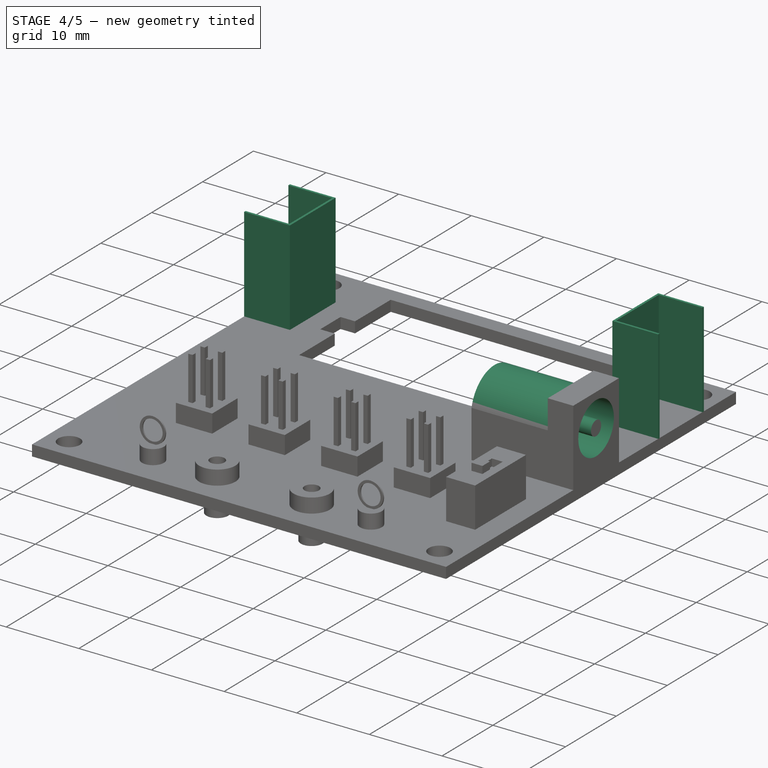
[diagram: stage 4 of 5 — iso view after this stage's code; geometry added in this stage tinted green]
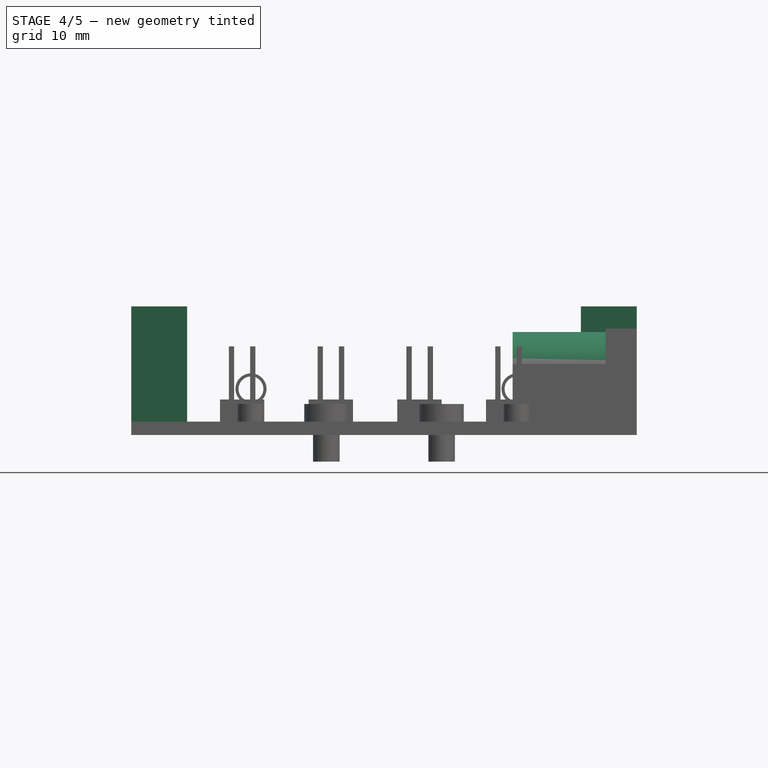
[diagram: stage 4 of 5 — front view after this stage's code; geometry added in this stage tinted green]
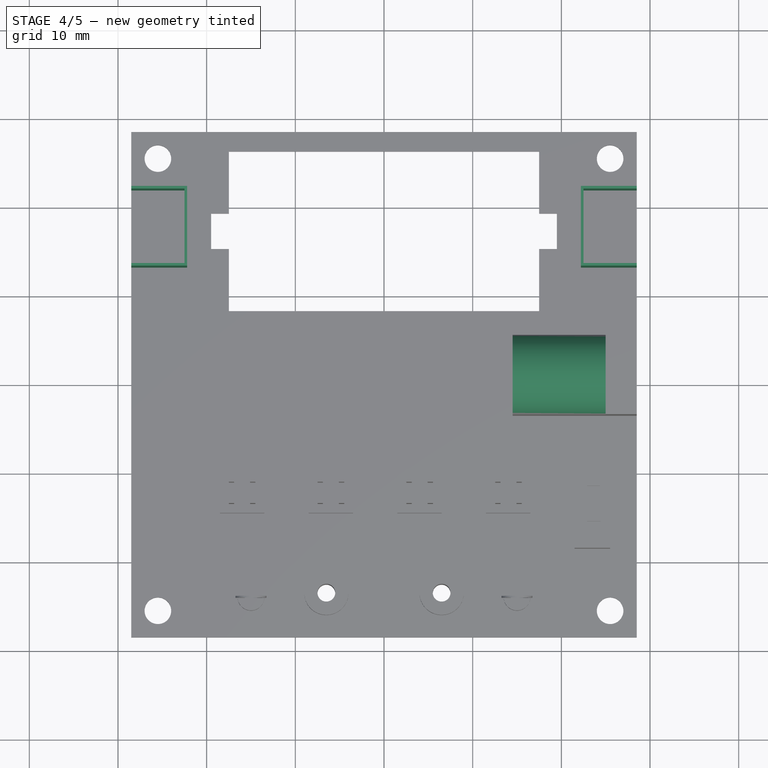
[diagram: stage 4 of 5 — top view after this stage's code; geometry added in this stage tinted green]
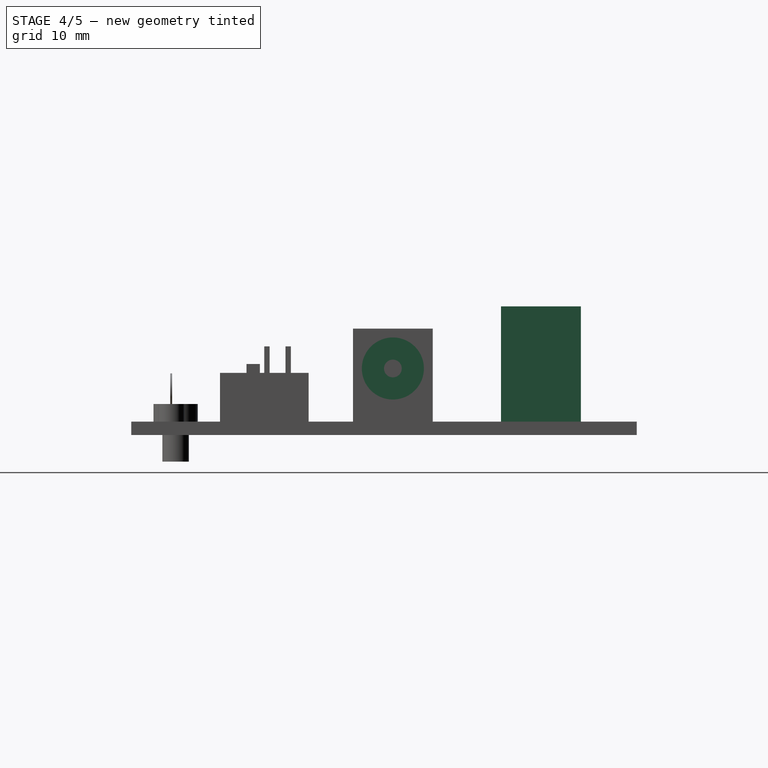
[diagram: stage 4 of 5 — right view after this stage's code; geometry added in this stage tinted green]
FEATURE [Sketcher::SketchObject] Sketch012
  ExternalGeometry = -> [Pad008]
  FullyConstrained = true
  MapMode = 5
  Placement = pos=(14.5,0,0) rot=(0.57735,-0.57735,-0.57735;2.0944rad)
  Support = -> [Pad008]
  sketch-geometry (4):
    g0: ArcOfCircle CenterX=-1 CenterY=7 CenterZ=0 NormalX=0 NormalY=0 NormalZ=1 AngleXU=0 Radius=4.60977 StartAngle=0.218669 EndAngle=2.92292
    g1: LineSegment StartX=-5.5 StartY=8 StartZ=0 EndX=-5.5 EndY=12 EndZ=0
    g2: LineSegment StartX=-5.5 StartY=12 StartZ=0 EndX=3.5 EndY=12 EndZ=0
    g3: LineSegment StartX=3.5 StartY=12 StartZ=0 EndX=3.5 EndY=8 EndZ=0
  constraints (11):
    c: PointOnObject(g0,g-3)
    c: PointOnObject(g0,g-4)
    c: DistanceY(g0,g-3) = 5
    c: Coincident(g1,g0)
    c: Coincident(g1,g-4)
    c: Coincident(g2,g1)
    c: Coincident(g2,g-3)
    c: Coincident(g3,g2)
    c: Coincident(g3,g0)
    c: DistanceY(g3,g3) = 4
    c: Equal(g1,g3)
FEATURE [PartDesign::Pocket] Pocket003
  BaseFeature = -> Pad008
  Direction = (1,0,0)
  Length = 10.5
  Length2 = 5
  Profile = -> Sketch012
  ReferenceAxis = -> Sketch012 [N_Axis]
  Type = 0
FEATURE [Sketcher::SketchObject] Sketch013
  ExternalGeometry = -> [Pocket003]
  FullyConstrained = true
  MapMode = 5
  Placement = pos=(28.5,0,0) rot=(0.57735,0.57735,0.57735;2.0944rad)
  Support = -> [Pocket003]
  sketch-geometry (1):
    g0: Circle CenterX=1 CenterY=7.5 CenterZ=0 NormalX=0 NormalY=0 NormalZ=1 AngleXU=0 Radius=3.5
  constraints (3):
    c: Diameter(g0) = 7
    c: DistanceY(g-3,g0) = 6
    c: DistanceX(g0,g-3) = 4.5
FEATURE [PartDesign::Pocket] Pocket004
  BaseFeature = -> Pocket003
  Direction = (-1,0,0)
  Length = 9
  Length2 = 5
  Profile = -> Sketch013
  ReferenceAxis = -> Sketch013 [N_Axis]
  Type = 0
FEATURE [Sketcher::SketchObject] Sketch014
  ExternalGeometry = -> [Pocket004]
  FullyConstrained = true
  MapMode = 5
  Placement = pos=(19.5,0,0) rot=(0.57735,0.57735,0.57735;2.0944rad)
  Support = -> [Pocket004]
  sketch-geometry (1):
    g0: Circle CenterX=1 CenterY=7.5 CenterZ=0 NormalX=0 NormalY=0 NormalZ=1 AngleXU=0 Radius=1
  constraints (2):
    c: Coincident(g0,g-3)
    c: Diameter(g0) = 2
FEATURE [PartDesign::Pad] Pad009
  BaseFeature = -> Pocket004
  Direction = (1,0,0)
  Length = 9
  Length2 = 10
  Profile = -> Sketch014
  ReferenceAxis = -> Sketch014 [N_Axis]
  Type = 0
FEATURE [Sketcher::SketchObject] Sketch015
  ExternalGeometry = -> [Pad009]
  FullyConstrained = true
  MapMode = 5
  Placement = pos=(0,0,1.5) rot=(0,0,1;0rad)
  Support = -> [Pad009]
  sketch-geometry (16):
    g0: LineSegment StartX=22.2 StartY=22.2 StartZ=0 EndX=28.5 EndY=22.2 EndZ=0
    g1: LineSegment StartX=28.5 StartY=13.2 StartZ=0 EndX=22.2 EndY=13.2 EndZ=0
    g2: LineSegment StartX=22.2 StartY=13.2 StartZ=0 EndX=22.2 EndY=22.2 EndZ=0
    g3: LineSegment StartX=-28.5 StartY=22.2 StartZ=0 EndX=-22.2 EndY=22.2 EndZ=0
    g4: LineSegment StartX=-22.2 StartY=22.2 StartZ=0 EndX=-22.2 EndY=13.2 EndZ=0
    g5: LineSegment StartX=-22.2 StartY=13.2 StartZ=0 EndX=-28.5 EndY=13.2 EndZ=0
    g6: LineSegment StartX=-28.5 StartY=22.2 StartZ=0 EndX=-28.5 EndY=21.9 EndZ=0
    g7: LineSegment StartX=-28.5 StartY=21.9 StartZ=0 EndX=-22.5 EndY=21.9 EndZ=0
    g8: LineSegment StartX=-22.5 StartY=21.9 StartZ=0 EndX=-22.5 EndY=13.5 EndZ=0
    g9: LineSegment StartX=-22.5 StartY=13.5 StartZ=0 EndX=-28.5 EndY=13.5 EndZ=0
    g10: LineSegment StartX=-28.5 StartY=13.5 StartZ=0 EndX=-28.5 EndY=13.2 EndZ=0
    g11: LineSegment StartX=28.5 StartY=22.2 StartZ=0 EndX=28.5 EndY=21.9 EndZ=0
    g12: LineSegment StartX=28.5 StartY=21.9 StartZ=0 EndX=22.5 EndY=21.9 EndZ=0
    g13: LineSegment StartX=22.5 StartY=21.9 StartZ=0 EndX=22.5 EndY=13.5 EndZ=0
    g14: LineSegment StartX=22.5 StartY=13.5 StartZ=0 EndX=28.5 EndY=13.5 EndZ=0
    g15: LineSegment StartX=28.5 StartY=13.5 StartZ=0 EndX=28.5 EndY=13.2 EndZ=0
  constraints (47):
    c: Coincident(g1,g2)
    c: Coincident(g2,g0)
    c: Horizontal(g0)
    c: Horizontal(g1)
    c: Vertical(g2)
    c: PointOnObject(g1,g-3)
    c: Coincident(g3,g4)
    c: Coincident(g4,g5)
    c: Horizontal(g3)
    c: Horizontal(g5)
    c: Vertical(g4)
    c: PointOnObject(g3,g-4)
    c: Equal(g4,g2)
    c: Symmetric(g0,g3,g-2)
    c: DistanceY(g0,g-3) = 6.3
    c: DistanceY(g1,g0) = 9
    c: DistanceX(g1,g1) = 6.3
    c: Coincident(g6,g3)
    c: PointOnObject(g6,g-4)
    c: Coincident(g7,g6)
    c: Horizontal(g7)
    c: Coincident(g8,g7)
    c: Vertical(g8)
    c: Coincident(g9,g8)
    c: PointOnObject(g9,g-4)
    c: Horizontal(g9)
    c: Coincident(g10,g9)
    c: Coincident(g10,g5)
    c: DistanceY(g6,g6) = 0.3
    c: DistanceX(g7,g3) = 0.3
    c: DistanceY(g10,g10) = 0.3
    c: Vertical(g10)
    c: Coincident(g0,g11)
    c: PointOnObject(g11,g-3)
    c: Vertical(g11)
    c: Coincident(g11,g12)
    c: Horizontal(g12)
    c: Coincident(g12,g13)
    c: Vertical(g13)
    c: Coincident(g13,g14)
    c: PointOnObject(g14,g-3)
    c: Horizontal(g14)
    c: Coincident(g14,g15)
    c: Coincident(g15,g1)
    c: DistanceY(g11,g11) = 0.3
    c: DistanceX(g0,g12) = 0.3
    c: DistanceY(g15,g15) = 0.3
FEATURE [PartDesign::Pad] Pad010
  BaseFeature = -> Pad009
  Direction = (0,0,1)
  Length = 13
  Length2 = 10
  Profile = -> Sketch015
  ReferenceAxis = -> Sketch015 [N_Axis]
  Type = 0
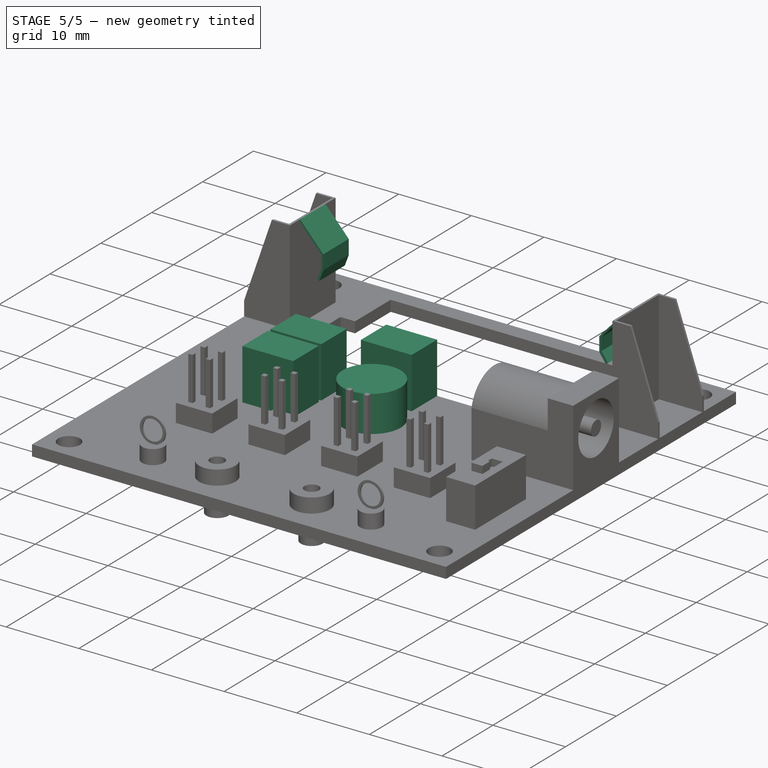
[diagram: stage 5 of 5 — iso view after this stage's code; geometry added in this stage tinted green]
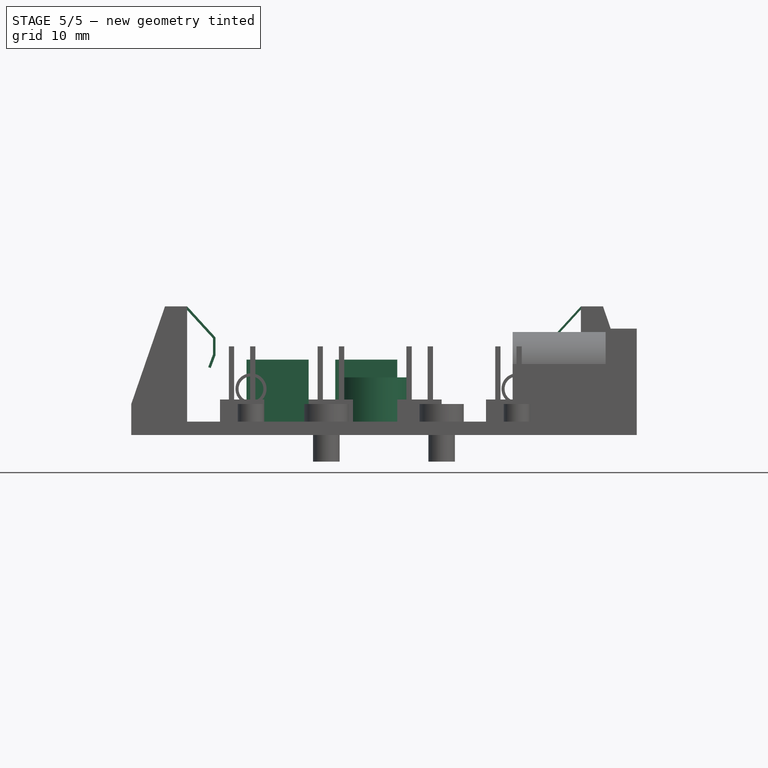
[diagram: stage 5 of 5 — front view after this stage's code; geometry added in this stage tinted green]
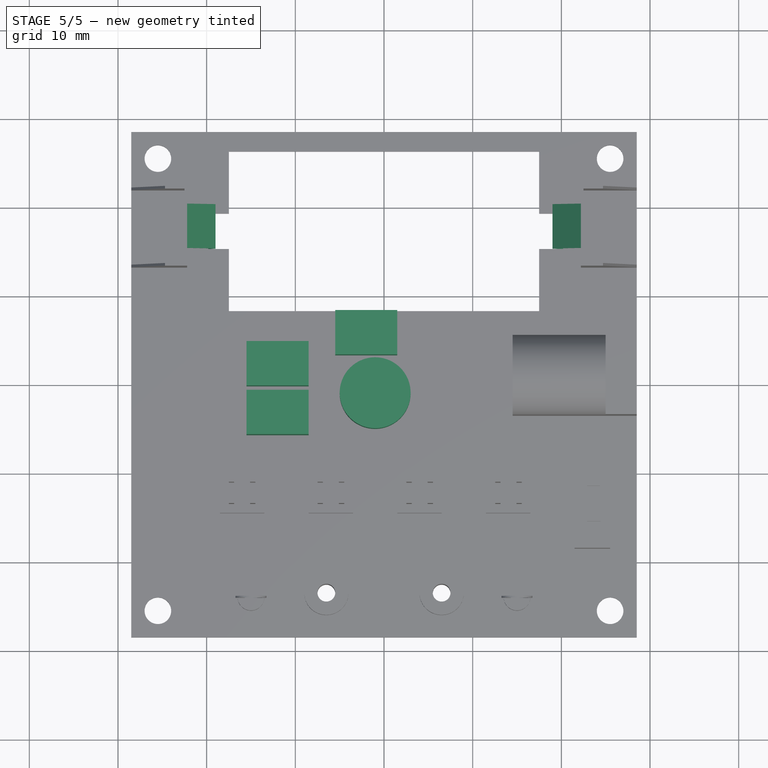
[diagram: stage 5 of 5 — top view after this stage's code; geometry added in this stage tinted green]
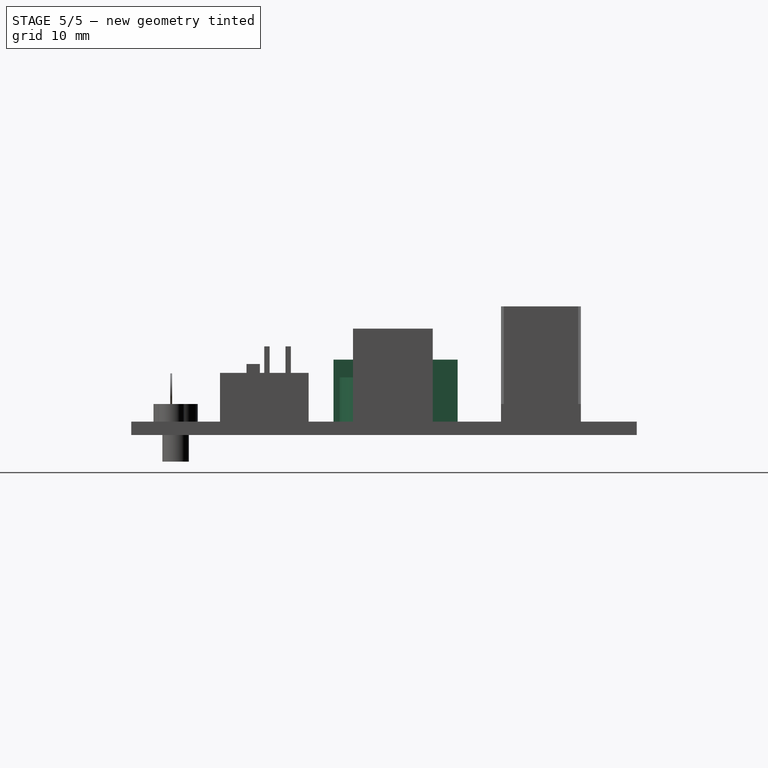
[diagram: stage 5 of 5 — right view after this stage's code; geometry added in this stage tinted green]
FEATURE [Sketcher::SketchObject] Sketch016
  ExternalGeometry = -> [Pad010]
  FullyConstrained = true
  MapMode = 5
  Placement = pos=(0,22.2,0) rot=(0,0.707107,0.707107;3.14159rad)
  Support = -> [Pad010]
  sketch-geometry (6):
    g0: LineSegment StartX=24.7 StartY=14.5 StartZ=0 EndX=28.5 EndY=14.5 EndZ=0
    g1: LineSegment StartX=28.5 StartY=14.5 StartZ=0 EndX=28.5 EndY=3.5 EndZ=0
    g2: LineSegment StartX=28.5 StartY=3.5 StartZ=0 EndX=24.7 EndY=14.5 EndZ=0
    g3: LineSegment StartX=-24.7 StartY=14.5 StartZ=0 EndX=-28.5 EndY=14.5 EndZ=0
    g4: LineSegment StartX=-28.5 StartY=14.5 StartZ=0 EndX=-28.5 EndY=3.5 EndZ=0
    g5: LineSegment StartX=-28.5 StartY=3.5 StartZ=0 EndX=-24.7 EndY=14.5 EndZ=0
  constraints (16):
    c: PointOnObject(g0,g-6)
    c: Coincident(g0,g-6)
    c: Coincident(g0,g1)
    c: PointOnObject(g1,g-3)
    c: Coincident(g1,g2)
    c: Coincident(g2,g0)
    c: PointOnObject(g3,g-5)
    c: Coincident(g3,g-5)
    c: Coincident(g3,g4)
    c: PointOnObject(g4,g-4)
    c: Coincident(g4,g5)
    c: Coincident(g5,g3)
    c: Equal(g1,g4)
    c: Equal(g0,g3)
    c: DistanceY(g-3,g1) = 2
    c: DistanceX(g-6,g0) = 2.5
FEATURE [PartDesign::Pocket] Pocket005
  BaseFeature = -> Pad010
  Direction = (0,-1,2e-16)
  Length = 9
  Length2 = 5
  Profile = -> Sketch016
  ReferenceAxis = -> Sketch016 [N_Axis]
  Type = 0
FEATURE [PartDesign::CoordinateSystem] Local_CS001
  AttacherType = Attacher::AttachEngine3D
  AttachmentOffset = pos=(0,0,-2) rot=(0,0,1;0rad)
  MapMode = 7
  Placement = pos=(-22.2,20.2,14.5) rot=(0,0.707107,0.707107;3.14159rad)
  Support = -> [Pocket005]
FEATURE [PartDesign::Plane] DatumPlane001
  Length = 67.6771
  MapMode = 5
  Placement = pos=(-22.2,20.2,14.5) rot=(0,0.707107,0.707107;3.14159rad)
  ResizeMode = 0
  Support = -> [Local_CS001]
  Width = 60.6771
FEATURE [Sketcher::SketchObject] Sketch017
  ExternalGeometry = -> [Pocket005]
  FullyConstrained = true
  MapMode = 5
  Placement = pos=(-22.2,20.2,14.5) rot=(0,0.707107,0.707107;3.14159rad)
  Support = -> [DatumPlane001]
  sketch-geometry (16):
    g0: LineSegment StartX=0 StartY=0 StartZ=0 EndX=-3.2 EndY=-3.5 EndZ=0
    g1: LineSegment StartX=-44.4 StartY=0 StartZ=0 EndX=-41.2 EndY=-3.5 EndZ=0
    g2: LineSegment StartX=-41.2 StartY=-3.5 StartZ=0 EndX=-41.2 EndY=-5.5 EndZ=0
    g3: LineSegment StartX=-3.2 StartY=-3.5 StartZ=0 EndX=-3.2 EndY=-5.5 EndZ=0
    g4: LineSegment StartX=-41.2 StartY=-5.5 StartZ=0 EndX=-42.102 EndY=-6.76053 EndZ=0
    g5: LineSegment StartX=-3.2 StartY=-5.5 StartZ=0 EndX=-2.6575 EndY=-6.95196 EndZ=0
    g6: LineSegment StartX=-42.102 StartY=-6.76053 StartZ=0 EndX=-42.4008 EndY=-6.54667 EndZ=0
    g7: LineSegment StartX=-42.4008 StartY=-6.54667 StartZ=0 EndX=-41.4989 EndY=-5.28615 EndZ=0
    g8: LineSegment StartX=-41.4989 StartY=-5.28615 StartZ=0 EndX=-41.4989 EndY=-3.52615 EndZ=0
    g9: LineSegment StartX=-41.4989 StartY=-3.52615 StartZ=0 EndX=-44.5758 EndY=-0.160737 EndZ=0
    g10: LineSegment StartX=-44.5758 StartY=-0.160737 StartZ=0 EndX=-44.4 EndY=0 EndZ=0
    g11: LineSegment StartX=-2.6575 StartY=-6.95196 StartZ=0 EndX=-2.37648 EndY=-6.84696 EndZ=0
    g12: LineSegment StartX=-2.37648 StartY=-6.84696 StartZ=0 EndX=-2.91898 EndY=-5.395 EndZ=0
    g13: LineSegment StartX=-2.91898 StartY=-5.395 StartZ=0 EndX=-2.91898 EndY=-3.605 EndZ=0
    g14: LineSegment StartX=-2.91898 StartY=-3.605 StartZ=0 EndX=0.281025 EndY=-0.105 EndZ=0
    g15: LineSegment StartX=0.281025 StartY=-0.105 StartZ=0 EndX=0 EndY=0 EndZ=0
  constraints (46):
    c: Coincident(g0,g-3)
    c: Coincident(g1,g-4)
    c: Coincident(g2,g1)
    c: Coincident(g3,g0)
    c: Vertical(g3)
    c: Coincident(g4,g2)
    c: Coincident(g5,g3)
    c: Coincident(g4,g6)
    c: Coincident(g6,g7)
    c: Coincident(g7,g8)
    c: Vertical(g8)
    c: Coincident(g8,g9)
    c: Coincident(g9,g10)
    c: Coincident(g10,g1)
    c: Coincident(g5,g11)
    c: Coincident(g11,g12)
    c: Coincident(g12,g13)
    c: Vertical(g13)
    c: Coincident(g13,g14)
    c: Coincident(g14,g15)
    c: Coincident(g15,g0)
    c: Parallel(g14,g0)
    c: Parallel(g5,g12)
    c: Parallel(g9,g1)
    c: Parallel(g7,g4)
    c: Distance(g8,g1) = 0.3
    c: Vertical(g2)
    c: Distance(g0,g13) = 0.3
    c: Distance(g3,g12) = 0.3
    c: Equal(g14,g0)
    c: Equal(g5,g12)
    c: DistanceY(g0,g0) = 3.5
    c: DistanceX(g0,g0) = 3.2
    c: DistanceY(g3,g3) = 2
    c: DistanceY(g13,g13) = 1.79
    c: Distance(g12) = 1.55
    c: Angle(g12,g11) = 1.5708
    c: DistanceX(g1,g1) = 3.2
    c: DistanceY(g1,g1) = 3.5
    c: Equal(g2,g3)
    c: Equal(g4,g5)
    c: Angle(g4,g6) = 1.5708
    c: Distance(g7) = 1.55
    c: Angle(g10,g1) = 1.5708
    c: DistanceY(g8,g8) = 1.76
    c: Distance(g9) = 4.56
FEATURE [PartDesign::Pad] Pad011
  BaseFeature = -> Pocket005
  Direction = (0,1,-2e-16)
  Length = 5
  Length2 = 10
  Profile = -> Sketch017
  ReferenceAxis = -> Sketch017 [N_Axis]
  Reversed = true
  Type = 0
FEATURE [Sketcher::SketchObject] Sketch018
  ExternalGeometry = -> [Pad011]
  FullyConstrained = true
  MapMode = 5
  Placement = pos=(0,0,1.5) rot=(0,0,1;0rad)
  Support = -> [Pad011]
  sketch-geometry (12):
    g0: LineSegment StartX=-15.5 StartY=4.8 StartZ=0 EndX=-8.5 EndY=4.8 EndZ=0
    g1: LineSegment StartX=-8.5 StartY=4.8 StartZ=0 EndX=-8.5 EndY=-0.2 EndZ=0
    g2: LineSegment StartX=-8.5 StartY=-0.2 StartZ=0 EndX=-15.5 EndY=-0.2 EndZ=0
    g3: LineSegment StartX=-15.5 StartY=-0.2 StartZ=0 EndX=-15.5 EndY=4.8 EndZ=0
    g4: LineSegment StartX=-15.5 StartY=-0.7 StartZ=0 EndX=-8.5 EndY=-0.7 EndZ=0
    g5: LineSegment StartX=-8.5 StartY=-0.7 StartZ=0 EndX=-8.5 EndY=-5.7 EndZ=0
    g6: LineSegment StartX=-8.5 StartY=-5.7 StartZ=0 EndX=-15.5 EndY=-5.7 EndZ=0
    g7: LineSegment StartX=-15.5 StartY=-5.7 StartZ=0 EndX=-15.5 EndY=-0.7 EndZ=0
    g8: LineSegment StartX=-5.5 StartY=8.3 StartZ=0 EndX=1.5 EndY=8.3 EndZ=0
    g9: LineSegment StartX=1.5 StartY=8.3 StartZ=0 EndX=1.5 EndY=3.3 EndZ=0
    g10: LineSegment StartX=1.5 StartY=3.3 StartZ=0 EndX=-5.5 EndY=3.3 EndZ=0
    g11: LineSegment StartX=-5.5 StartY=3.3 StartZ=0 EndX=-5.5 EndY=8.3 EndZ=0
  constraints (36):
    c: Coincident(g0,g1)
    c: Coincident(g1,g2)
    c: Coincident(g2,g3)
    c: Coincident(g3,g0)
    c: Horizontal(g0)
    c: Horizontal(g2)
    c: Vertical(g1)
    c: Vertical(g3)
    c: Coincident(g4,g5)
    c: Coincident(g5,g6)
    c: Coincident(g6,g7)
    c: Coincident(g7,g4)
    c: Horizontal(g4)
    c: Horizontal(g6)
    c: Vertical(g5)
    c: Vertical(g7)
    c: Coincident(g8,g9)
    c: Coincident(g9,g10)
    c: Coincident(g10,g11)
    c: Coincident(g11,g8)
    c: Horizontal(g8)
    c: Horizontal(g10)
    c: Vertical(g9)
    c: Vertical(g11)
    c: Equal(g10,g6)
    c: Equal(g6,g2)
    c: Equal(g5,g1)
    c: Equal(g1,g9)
    c: DistanceY(g9,g9) = 5
    c: DistanceX(g6,g6) = 7
    c: DistanceX(g-3,g0) = 13
    c: DistanceY(g0,g-4) = 3.5
    c: DistanceY(g4,g2) = 0.5
    c: DistanceX(g-3,g4) = 13
    c: PointOnObject(g8,g-4)
    c: DistanceX(g0,g10) = 3
FEATURE [PartDesign::Pad] Pad012
  BaseFeature = -> Pad011
  Direction = (0,0,1)
  Length = 7
  Length2 = 10
  Profile = -> Sketch018
  ReferenceAxis = -> Sketch018 [N_Axis]
  Type = 0
FEATURE [Sketcher::SketchObject] Sketch019
  FullyConstrained = true
  MapMode = 5
  Placement = pos=(0,0,1.5) rot=(0,0,1;0rad)
  Support = -> [Pad012]
  sketch-geometry (1):
    g0: Circle CenterX=-1 CenterY=-1 CenterZ=0 NormalX=0 NormalY=0 NormalZ=1 AngleXU=0 Radius=4
  constraints (3):
    c: Diameter(g0) = 8
    c: DistanceX(g0,g-1) = 1
    c: DistanceY(g0,g-1) = 1
FEATURE [PartDesign::Pad] Pad013
  BaseFeature = -> Pad012
  Direction = (0,0,1)
  Length = 5
  Length2 = 10
  Profile = -> Sketch019
  ReferenceAxis = -> Sketch019 [N_Axis]
  Type = 0
FEATURE [PartDesign::CoordinateSystem] LCS_1
  AttacherType = Attacher::AttachEngine3D
  MapMode = 11
  Placement = pos=(-25.5,-25.5,0) rot=(0,0,1;1.5708rad)
  Support = -> [Pad013]
FEATURE [PartDesign::Body] Body
  Group = -> [Sketch,Pad,Sketch001,Pocket,Sketch002,Pad001,Sketch003,Pad002,Sketch004,Pocket001,Local_CS,DatumPlane,Sketch005,Pad003,Sketch006,Pad004,Sketch007,Pocket002,Sketch008,Pad005,Sketch009,Pad006,Sketch010,Pad007,Sketch011,Pad008,Sketch012,Pocket003,Sketch013,Pocket004,Sketch014,Pad009,Sketch015,Pad010,Sketch016,Pocket005,Local_CS001,DatumPlane001,Sketch017,Pad011,Sketch018,Pad012,Sketch019,Pad013,+1 more]
  Origin = -> Origin
  Tip = -> Pad013
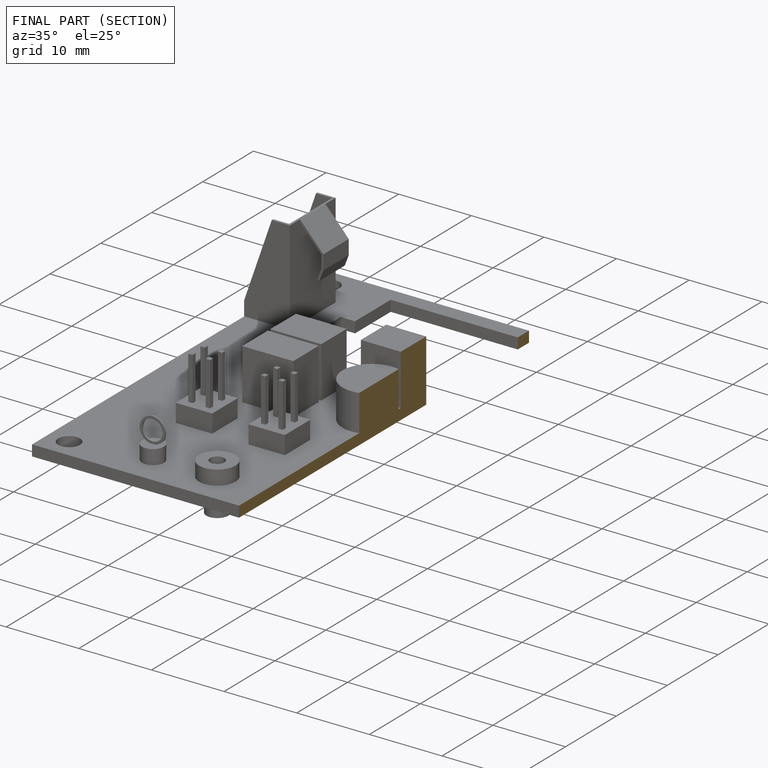
[diagram: finished part — half-section view (interior)]
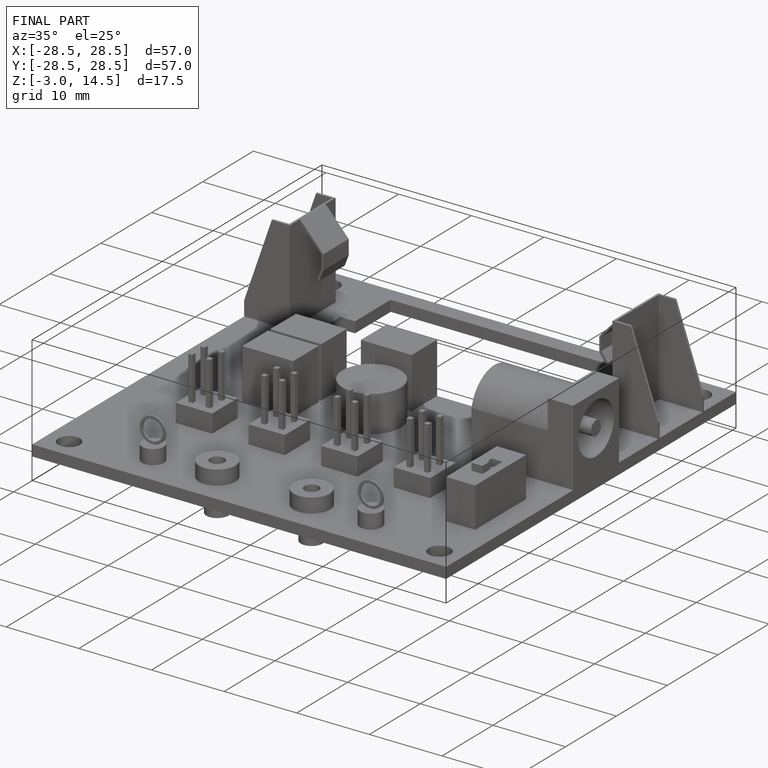
[diagram: finished part — iso view with bounding-box wireframe]
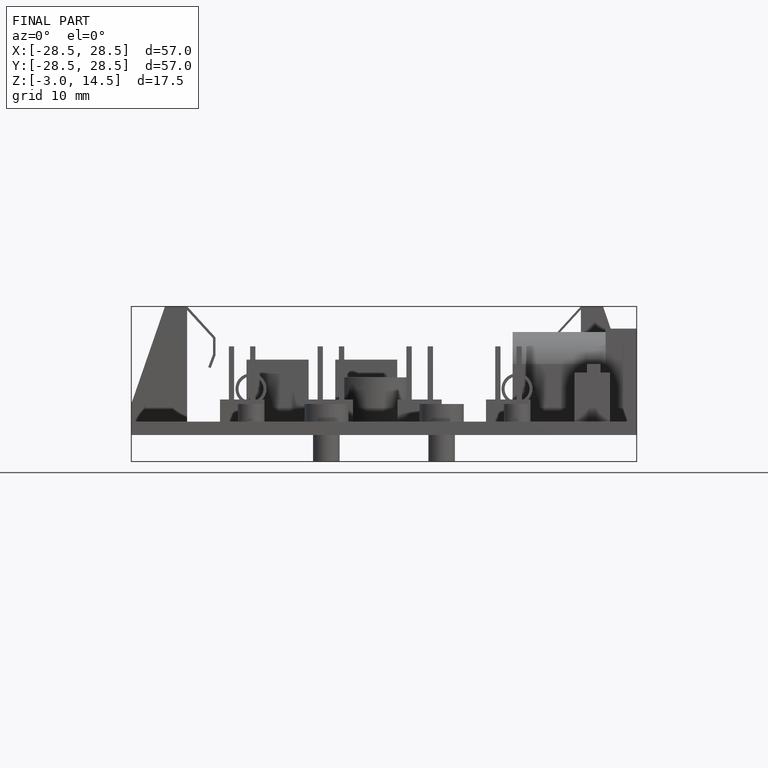
[diagram: finished part — front view with bounding-box wireframe]
